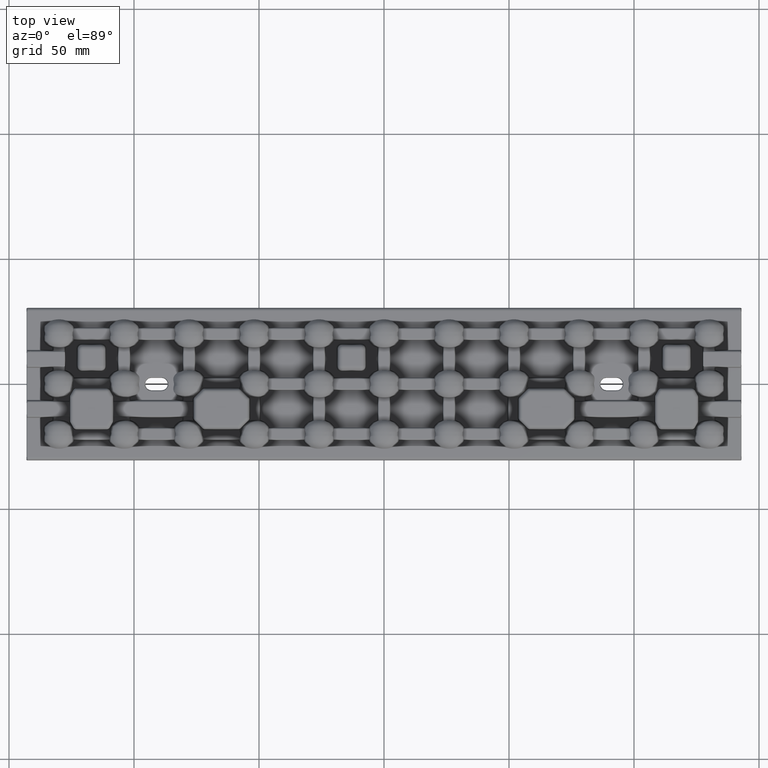
[diagram: clean part render]
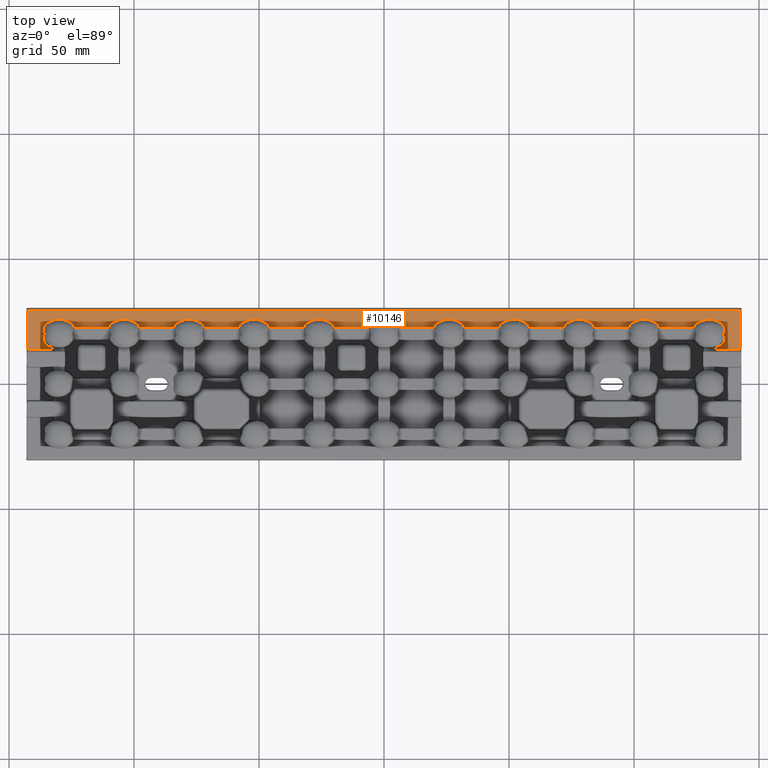
[diagram: same view with one face highlighted and labeled with its STEP entity id]
A machine part, top view. The second image highlights one B-rep face of the part: STEP entity #10146.
In plain terms, the highlighted planar face has unit normal (-0, 0, 1).
Its self-contained STEP definition (entity closure, byte-faithful):
#170 = B_SPLINE_CURVE_WITH_KNOTS ( 'NONE', 3,
 ( #16532, #3737, #4237, #1742, #78071, #77612, #77556, #77459, #77193, #77089, #76927, #76827, #76677, #76575, #76425, #76317, #61098, #7868, #21978, #76221, #76145, #76047, #75944, #75870, #75781, #75528, #75433, #75259, #75005, #74916, #74754, #74669, #74513, #74415, #74143, #73977 ),
 .UNSPECIFIED., .F., .F.,
 ( 4, 2, 2, 2, 2, 2, 2, 2, 2, 2, 2, 2, 2, 2, 2, 2, 2, 4 ),
 ( 0.002275996343188634400, 0.002728250509917983000, 0.003180504676647331300, 0.004085013010106036000, 0.004989521343564741100, 0.005894029677023446300, 0.006798538010482150500, 0.007703046343940856500, 0.008607554677399560000, 0.009512063010858266800, 0.01041657134431697000, 0.01132107967777567500, 0.01222558801123438200, 0.01313009634469308600, 0.01403460467815179100, 0.01493911301161049600, 0.01584362134506920100, 0.01674812967852790800 ),
 .UNSPECIFIED. ) ;
#185 = CARTESIAN_POINT ( 'NONE',  ( 24.48413725215601700, 25.76195794472083000, 2.000000000000000400 ) ) ;
#442 = CARTESIAN_POINT ( 'NONE',  ( 19.87528341715069400, 22.74142219370213200, 2.000000000000000000 ) ) ;
#738 = CARTESIAN_POINT ( 'NONE',  ( 132.7414221937016500, 14.53910680610566800, 2.000000000000000000 ) ) ;
#765 = CARTESIAN_POINT ( 'NONE',  ( -128.4867805242857600, 25.76397037756438000, 2.000000000000001300 ) ) ;
#933 = CARTESIAN_POINT ( 'NONE',  ( -47.39866481870599600, 24.58670644603919100, 2.000000000000000400 ) ) ;
#1049 = CARTESIAN_POINT ( 'NONE',  ( -135.6446668319441900, 23.64242492569152500, 2.000000000000190500 ) ) ;
#1181 = CARTESIAN_POINT ( 'NONE',  ( -53.21851775567384400, 25.80668256297307300, 1.999999999999998700 ) ) ;
#1395 = CARTESIAN_POINT ( 'NONE',  ( -72.48068254455195400, 23.79182352437914400, 2.000000000000050600 ) ) ;
#1421 = CARTESIAN_POINT ( 'NONE',  ( -58.02591998899578800, 23.03094700164173100, 2.000000000000001800 ) ) ;
#1567 = VECTOR ( 'NONE', #22036, 1000.000000000000000 ) ;
#1667 = CARTESIAN_POINT ( 'NONE',  ( -77.70456299393923400, 25.87784888434082100, 2.000000000000000400 ) ) ;
#1742 = CARTESIAN_POINT ( 'NONE',  ( 83.87143930477189700, 23.29325767552289500, 2.000000000000003600 ) ) ;
#1931 = CARTESIAN_POINT ( 'NONE',  ( -83.31008325977423100, 24.01117280352592000, 2.000000000000001300 ) ) ;
#2213 = CARTESIAN_POINT ( 'NONE',  ( -97.87528335633135200, 22.74142219370216000, 2.000000000000000000 ) ) ;
#2487 = CARTESIAN_POINT ( 'NONE',  ( 109.3105573360353600, 24.01081039900182600, 2.000000000000000400 ) ) ;
#2601 = CARTESIAN_POINT ( 'NONE',  ( 136.0389785945272400, 19.27654510555689500, 2.000000000000000000 ) ) ;
#2712 = DIRECTION ( 'NONE',  ( 1.000000000000000000, 0.0000000000000000000, 0.0000000000000000000 ) ) ;
#2747 = CARTESIAN_POINT ( 'NONE',  ( 103.6867157828229000, 25.87737867770244200, 2.000000000000000400 ) ) ;
#2935 = B_SPLINE_CURVE_WITH_KNOTS ( 'NONE', 3,
 ( #12330, #48321, #42562, #6541, #48570, #12589, #54614, #18668, #60630, #24695, #66757, #30674, #72882, #36741, #765, #42822, #6792, #48849, #12844, #54857, #18929, #60892, #24940, #67011, #30950, #73146, #36992, #1049, #43085, #7047, #49101, #13112, #55105, #19193, #61165, #25216, #67273, #31202 ),
 .UNSPECIFIED., .F., .F.,
 ( 4, 2, 2, 2, 2, 2, 2, 2, 2, 2, 2, 2, 2, 2, 2, 2, 2, 2, 4 ),
 ( 0.002275996343188637000, 0.002780745778955590000, 0.003285495214722543000, 0.004294994086256441100, 0.005304492957790273400, 0.006313991829324107400, 0.007323490700857940500, 0.008332989572391773600, 0.009342488443925607600, 0.01035198731545944000, 0.01237098505852710800, 0.01338048393006094300, 0.01438998280159477600, 0.01539948167312861100, 0.01640898054466244400, 0.01691372998042935800, 0.01741847941619627200, 0.01792322885196318300, 0.01842797828773009800 ),
 .UNSPECIFIED. ) ;
#2966 = CARTESIAN_POINT ( 'NONE',  ( 136.2708788479544600, 21.91032279607789200, 2.000000000000001800 ) ) ;
#3012 = CARTESIAN_POINT ( 'NONE',  ( 98.48078496340417600, 23.79222974334703300, 2.000000000000000400 ) ) ;
#3150 = CARTESIAN_POINT ( 'NONE',  ( 54.10189896508311600, 25.64368310781740900, 2.000000000000001300 ) ) ;
#3162 = B_SPLINE_CURVE_WITH_KNOTS ( 'NONE', 3,
 ( #50793, #56781, #75078, #38947, #2966, #45015, #8975, #51036, #15072, #57043, #21111, #63105, #27100, #69252, #33135, #75340, #39212, #3216, #45272, #9237, #51289, #15330, #57317, #21362, #63366, #27356, #69512, #33389, #75598, #39471, #3459, #45523, #9502, #51552, #15580, #57562 ),
 .UNSPECIFIED., .F., .F.,
 ( 4, 2, 2, 2, 2, 2, 2, 2, 2, 2, 2, 2, 2, 2, 2, 2, 2, 4 ),
 ( 0.0005961375090279718500, 0.001100887264324848500, 0.001605637019621725300, 0.002615136530215463200, 0.003119886285512309200, 0.003624636040809155600, 0.004634135551402855800, 0.005643635061996554700, 0.006653134572590255400, 0.008672133593777737300, 0.009681633104371518600, 0.01069113261496530000, 0.01271013163615294600, 0.01371963114674676700, 0.01472913065734058800, 0.01573863016793434300, 0.01624337992323121600, 0.01674812967852808500 ),
 .UNSPECIFIED. ) ;
#3208 = CARTESIAN_POINT ( 'NONE',  ( 5.788717846260484000, 23.42357442482896300, 2.000000000000051500 ) ) ;
#3216 = CARTESIAN_POINT ( 'NONE',  ( 132.1820311154945700, 25.64624235797493400, 1.999999999999998200 ) ) ;
#3395 = CARTESIAN_POINT ( 'NONE',  ( 48.18471247326403500, 25.03882649742064700, 2.000000000000001300 ) ) ;
#3451 = CARTESIAN_POINT ( 'NONE',  ( 0.6001387294918908400, 25.86574220998206600, 1.999999999999998700 ) ) ;
#3459 = CARTESIAN_POINT ( 'NONE',  ( 124.5732020887307800, 23.89857342531216800, 2.000000000000007100 ) ) ;
#3469 = CARTESIAN_POINT ( 'NONE',  ( 135.1988268364245900, 15.88518975005948700, 2.000000000000009300 ) ) ;
#3558 = CARTESIAN_POINT ( 'NONE',  ( -100.7373489821062400, 25.28184242365429000, 2.000000000000000400 ) ) ;
#3569 = CARTESIAN_POINT ( 'NONE',  ( -136.2074829077699300, 18.67874981392211700, 1.999999999999801000 ) ) ;
#3709 = CARTESIAN_POINT ( 'NONE',  ( -4.851493050310116600, 24.40868959467557900, 2.000000000000000000 ) ) ;
#3737 = CARTESIAN_POINT ( 'NONE',  ( 84.07550965349980700, 22.88562396744906000, 1.999999999999997800 ) ) ;
#3817 = CARTESIAN_POINT ( 'NONE',  ( -106.3963700064277900, 25.56854427240503100, 1.999999999999999100 ) ) ;
#3827 = CARTESIAN_POINT ( 'NONE',  ( -133.9340473854843500, 15.02213694033559000, 2.000000000000000400 ) ) ;
#4192 = EDGE_CURVE ( 'NONE', #19715, #58432, #62599, .T. ) ;
#4237 = CARTESIAN_POINT ( 'NONE',  ( 84.01452209546738500, 23.02461435016126900, 2.000000000000003600 ) ) ;
#4531 = EDGE_CURVE ( 'NONE', #57799, #24482, #170, .T. ) ;
#4870 = CARTESIAN_POINT ( 'NONE',  ( -136.1422940776980400, 18.92599855326297100, 2.000000000000179400 ) ) ;
#5527 = CARTESIAN_POINT ( 'NONE',  ( -21.14984179067012300, 24.40979810255904800, 2.000000000000000400 ) ) ;
#5704 = CARTESIAN_POINT ( 'NONE',  ( 32.12471664366864100, 22.74142219370213900, 2.000000000000000000 ) ) ;
#5778 = CARTESIAN_POINT ( 'NONE',  ( -26.61769566497988000, 25.86461950329275400, 2.000000000000000000 ) ) ;
#5953 = CARTESIAN_POINT ( 'NONE',  ( 29.26265101789377000, 25.28184242365429300, 1.999999999999999100 ) ) ;
#6028 = CARTESIAN_POINT ( 'NONE',  ( -31.88072922454316000, 23.29753420550872500, 2.000000000000000400 ) ) ;
#6208 = CARTESIAN_POINT ( 'NONE',  ( 23.60362999357219100, 25.56854427240504200, 2.000000000000000900 ) ) ;
#6541 = CARTESIAN_POINT ( 'NONE',  ( -124.1649326987466100, 23.35422719709755800, 2.000000000000000900 ) ) ;
#6582 = ORIENTED_EDGE ( 'NONE', *, *, #16888, .F. ) ;
#6792 = CARTESIAN_POINT ( 'NONE',  ( -129.4980903145275600, 25.87147453427902000, 2.000000000000000900 ) ) ;
#6941 = CARTESIAN_POINT ( 'NONE',  ( -48.18262050165140000, 25.03780424287719000, 2.000000000000001300 ) ) ;
#7047 = CARTESIAN_POINT ( 'NONE',  ( -136.0682446042354700, 22.90529293210442000, 2.000000000000000400 ) ) ;
#7174 = CARTESIAN_POINT ( 'NONE',  ( -71.87528335633133700, 22.74142219370214900, 2.000000000000000000 ) ) ;
#7200 = VECTOR ( 'NONE', #19615, 1000.000000000000000 ) ;
#7202 = VERTEX_POINT ( 'NONE', #24356 ) ;
#7203 = CARTESIAN_POINT ( 'NONE',  ( -54.10478286921601700, 25.64285794544107900, 2.000000000000001300 ) ) ;
#7327 = VECTOR ( 'NONE', #69386, 1000.000000000000000 ) ;
#7413 = ORIENTED_EDGE ( 'NONE', *, *, #57274, .T. ) ;
#7437 = CARTESIAN_POINT ( 'NONE',  ( -73.14984179067012300, 24.40979810255902600, 2.000000000000000000 ) ) ;
#7698 = CARTESIAN_POINT ( 'NONE',  ( -78.61769566497979200, 25.86461950329276500, 2.000000000000001300 ) ) ;
#7844 = VERTEX_POINT ( 'NONE', #22972 ) ;
#7868 = CARTESIAN_POINT ( 'NONE',  ( 78.60013872949183200, 25.86574220998208100, 2.000000000000000900 ) ) ;
#7964 = CARTESIAN_POINT ( 'NONE',  ( -83.88072922454314600, 23.29753420550874000, 1.999999999999998700 ) ) ;
#8238 = VERTEX_POINT ( 'NONE', #40950 ) ;
#8242 = CARTESIAN_POINT ( 'NONE',  ( 110.1247166436686300, 22.74142219370216700, 2.000000000000000000 ) ) ;
#8521 = CARTESIAN_POINT ( 'NONE',  ( 108.6013351812940000, 24.58670644603920900, 2.000000000000000000 ) ) ;
#8773 = CARTESIAN_POINT ( 'NONE',  ( 102.7814822443262000, 25.80668256297308400, 2.000000000000000900 ) ) ;
#8910 = CARTESIAN_POINT ( 'NONE',  ( 57.87143930477193300, 23.29325767552287400, 2.000000000000004000 ) ) ;
#8966 = CARTESIAN_POINT ( 'NONE',  ( 6.014522095467413900, 23.02461435016123300, 2.000000000000004000 ) ) ;
#8975 = CARTESIAN_POINT ( 'NONE',  ( 136.1423770346253300, 22.75214154298077300, 1.999999999999962300 ) ) ;
#9015 = CARTESIAN_POINT ( 'NONE',  ( 97.97408001100424700, 23.03094700164176000, 2.000000000000001300 ) ) ;
#9072 = CARTESIAN_POINT ( 'NONE',  ( -136.1784386418722800, 18.80336111614544200, 1.999999999999999600 ) ) ;
#9096 = CARTESIAN_POINT ( 'NONE',  ( 132.7414221937016500, 0.0000000000000000000, 2.000000000000000000 ) ) ;
#9152 = DIRECTION ( 'NONE',  ( 1.000000000000000000, -3.844641663027053000E-016, 0.0000000000000000000 ) ) ;
#9162 = CARTESIAN_POINT ( 'NONE',  ( 53.20471487232482800, 25.80855502716314800, 2.000000000000001300 ) ) ;
#9223 = CARTESIAN_POINT ( 'NONE',  ( 5.310557336035417500, 24.01081039900179400, 2.000000000000001800 ) ) ;
#9237 = CARTESIAN_POINT ( 'NONE',  ( 130.4999643765035600, 25.87241571720616300, 2.000000000000000400 ) ) ;
#9337 = CARTESIAN_POINT ( 'NONE',  ( -97.92449034650015000, 22.88562396744903500, 1.999999999999996200 ) ) ;
#9368 = ORIENTED_EDGE ( 'NONE', *, *, #59045, .F. ) ;
#9434 = CARTESIAN_POINT ( 'NONE',  ( 47.39877739052919700, 24.58683439160101600, 2.000000000000000000 ) ) ;
#9490 = CARTESIAN_POINT ( 'NONE',  ( -0.3132842171769832400, 25.87737867770244200, 2.000000000000000000 ) ) ;
#9502 = CARTESIAN_POINT ( 'NONE',  ( 124.1642173043351400, 23.35299357963073800, 2.000000000000000400 ) ) ;
#9510 = CARTESIAN_POINT ( 'NONE',  ( 135.7193098480831800, 16.46446374168947500, 1.999999999999998700 ) ) ;
#9573 = VECTOR ( 'NONE', #9152, 1000.000000000000000 ) ;
#9587 = CARTESIAN_POINT ( 'NONE',  ( -101.6035630723461300, 25.56857466250403000, 1.999999999999998700 ) ) ;
#9597 = CARTESIAN_POINT ( 'NONE',  ( -136.2617692709982000, 18.29459632493069800, 1.999999999999990900 ) ) ;
#9732 = CARTESIAN_POINT ( 'NONE',  ( -5.519215036595817000, 23.79222974334701100, 2.000000000000000000 ) ) ;
#9838 = CARTESIAN_POINT ( 'NONE',  ( -107.2604607991790400, 25.28270322200913300, 2.000000000000000400 ) ) ;
#9848 = CARTESIAN_POINT ( 'NONE',  ( -133.2304776266955700, 14.70739173823322700, 2.000000000000000400 ) ) ;
#9893 = CARTESIAN_POINT ( 'NONE',  ( 6.124716643668670600, 22.74142219370212800, 2.000000000000000000 ) ) ;
#10146 = ADVANCED_FACE ( 'NONE', ( #21596 ), #62325, .T. ) ;
#10410 = ORIENTED_EDGE ( 'NONE', *, *, #11236, .F. ) ;
#10610 = CARTESIAN_POINT ( 'NONE',  ( -8.743261924239526700E-015, 22.74142219370212500, 2.000000000000000000 ) ) ;
#11010 = VECTOR ( 'NONE', #45987, 1000.000000000000000 ) ;
#11236 = EDGE_CURVE ( 'NONE', #74017, #21066, #24667, .T. ) ;
#11573 = CARTESIAN_POINT ( 'NONE',  ( -21.91415199814609200, 24.90006964188271600, 1.999999999999999100 ) ) ;
#11822 = CARTESIAN_POINT ( 'NONE',  ( -27.51586274784400400, 25.76195794472082300, 2.000000000000001300 ) ) ;
#12014 = CARTESIAN_POINT ( 'NONE',  ( 28.39643692765389100, 25.56857466250402000, 1.999999999999998700 ) ) ;
#12090 = CARTESIAN_POINT ( 'NONE',  ( -32.12471658284931000, 22.74142219370213500, 2.000000000000000000 ) ) ;
#12277 = CARTESIAN_POINT ( 'NONE',  ( 22.73953920082095000, 25.28270322200914300, 2.000000000000000400 ) ) ;
#12330 = CARTESIAN_POINT ( 'NONE',  ( -123.8752833563313500, 22.74142219370217100, 2.000000000000000000 ) ) ;
#12524 = EDGE_CURVE ( 'NONE', #26277, #66616, #3162, .T. ) ;
#12589 = CARTESIAN_POINT ( 'NONE',  ( -124.5727934172250700, 23.89787782810448400, 2.000000000000123000 ) ) ;
#12746 = EDGE_CURVE ( 'NONE', #21382, #53256, #45966, .T. ) ;
#12837 = LINE ( 'NONE', #74866, #58877 ) ;
#12844 = CARTESIAN_POINT ( 'NONE',  ( -130.5179456155990200, 25.87146490793557200, 2.000000000000000900 ) ) ;
#13006 = CARTESIAN_POINT ( 'NONE',  ( -49.02391717355021700, 25.38799079489401900, 2.000000000000000400 ) ) ;
#13112 = CARTESIAN_POINT ( 'NONE',  ( -136.2188377549439300, 22.41595420809252600, 1.999999999999992200 ) ) ;
#13236 = CARTESIAN_POINT ( 'NONE',  ( -71.92449034650013600, 22.88562396744902800, 1.999999999999996200 ) ) ;
#13259 = CARTESIAN_POINT ( 'NONE',  ( -54.97349825908265300, 25.38884701042956500, 2.000000000000000000 ) ) ;
#13488 = CARTESIAN_POINT ( 'NONE',  ( -73.91415199814606800, 24.90006964188270200, 1.999999999999998700 ) ) ;
#13749 = CARTESIAN_POINT ( 'NONE',  ( -79.51586274784394000, 25.76195794472082300, 2.000000000000000400 ) ) ;
#14027 = CARTESIAN_POINT ( 'NONE',  ( -84.12471658284931700, 22.74142219370215300, 2.000000000000000000 ) ) ;
#14075 = ORIENTED_EDGE ( 'NONE', *, *, #12746, .T. ) ;
#14587 = CARTESIAN_POINT ( 'NONE',  ( 107.8173794983486100, 25.03780424287719700, 2.000000000000001300 ) ) ;
#14844 = CARTESIAN_POINT ( 'NONE',  ( 101.8952171307839300, 25.64285794544107900, 1.999999999999999100 ) ) ;
#14989 = CARTESIAN_POINT ( 'NONE',  ( 142.4984859507544300, 13.77131854326629700, 2.000000000000000000 ) ) ;
#14995 = CARTESIAN_POINT ( 'NONE',  ( 57.51931745544804600, 23.79182352437914000, 2.000000000000050200 ) ) ;
#15064 = ORIENTED_EDGE ( 'NONE', *, *, #37060, .T. ) ;
#15072 = CARTESIAN_POINT ( 'NONE',  ( 135.8325920328521800, 23.35755012512630600, 2.000000000000017800 ) ) ;
#15079 = ORIENTED_EDGE ( 'NONE', *, *, #48727, .T. ) ;
#15263 = CARTESIAN_POINT ( 'NONE',  ( 52.29543700606078000, 25.87784888434084300, 2.000000000000000000 ) ) ;
#15318 = CARTESIAN_POINT ( 'NONE',  ( -71.87528335633133700, 22.74142219370214900, 2.000000000000000000 ) ) ;
#15322 = CARTESIAN_POINT ( 'NONE',  ( 4.601335181294024000, 24.58670644603917300, 1.999999999999999100 ) ) ;
#15330 = CARTESIAN_POINT ( 'NONE',  ( 129.4801714825816000, 25.87062644867763000, 2.000000000000001300 ) ) ;
#15422 = CARTESIAN_POINT ( 'NONE',  ( -97.98547790453260100, 23.02461435016126100, 2.000000000000002700 ) ) ;
#15516 = CARTESIAN_POINT ( 'NONE',  ( 46.68991674022574800, 24.01117280352590600, 2.000000000000000400 ) ) ;
#15570 = CARTESIAN_POINT ( 'NONE',  ( -1.218517755673786300, 25.80668256297306900, 2.000000000000000000 ) ) ;
#15580 = CARTESIAN_POINT ( 'NONE',  ( 123.9304156417274200, 22.90298795330229000, 2.000000000000000000 ) ) ;
#15591 = CARTESIAN_POINT ( 'NONE',  ( 136.0962294656004300, 17.14447868008417300, 1.999999999999918500 ) ) ;
#15673 = CARTESIAN_POINT ( 'NONE',  ( -102.4949628830236300, 25.76389970656172300, 2.000000000000001300 ) ) ;
#15685 = CARTESIAN_POINT ( 'NONE',  ( -136.2389101807882200, 17.64995279821489400, 2.000000000000000900 ) ) ;
#15824 = CARTESIAN_POINT ( 'NONE',  ( -6.025919988995787500, 23.03094700164171700, 2.000000000000000400 ) ) ;
#15943 = CARTESIAN_POINT ( 'NONE',  ( -108.0841774659759000, 24.90102541659839000, 2.000000000000000000 ) ) ;
#15954 = CARTESIAN_POINT ( 'NONE',  ( -132.7414221937016500, 14.53910680023595400, 2.000000000000000000 ) ) ;
#16532 = CARTESIAN_POINT ( 'NONE',  ( 84.12471664366862000, 22.74142219370215700, 2.000000000000000000 ) ) ;
#16888 = EDGE_CURVE ( 'NONE', #27560, #52897, #35302, .T. ) ;
#17004 = CARTESIAN_POINT ( 'NONE',  ( -135.9868454775444800, 20.36550122177483900, 2.000000000000000000 ) ) ;
#17040 = ORIENTED_EDGE ( 'NONE', *, *, #42802, .T. ) ;
#17285 = CARTESIAN_POINT ( 'NONE',  ( 132.7414221937016500, 13.77131854326629700, 2.000000000000000000 ) ) ;
#17340 = CARTESIAN_POINT ( 'NONE',  ( -132.7414221937016500, 14.53910680023595400, 2.000000000000000000 ) ) ;
#17587 = ORIENTED_EDGE ( 'NONE', *, *, #4531, .F. ) ;
#17653 = CARTESIAN_POINT ( 'NONE',  ( -22.73734898210623700, 25.28184242365429300, 1.999999999999999600 ) ) ;
#17831 = CARTESIAN_POINT ( 'NONE',  ( 32.01452209546740600, 23.02461435016125400, 2.000000000000004000 ) ) ;
#17908 = CARTESIAN_POINT ( 'NONE',  ( -28.39637000642782300, 25.56854427240503500, 2.000000000000000000 ) ) ;
#17954 = B_SPLINE_CURVE_WITH_KNOTS ( 'NONE', 3,
 ( #4870, #40616, #52932, #17004, #58952, #23044 ),
 .UNSPECIFIED., .F., .F.,
 ( 4, 2, 4 ),
 ( 0.0000000000000000000, 0.001085195747919706800, 0.002170391495839413600 ),
 .UNSPECIFIED. ) ;
#18096 = CARTESIAN_POINT ( 'NONE',  ( 27.50503711697639300, 25.76389970656171300, 2.000000000000001300 ) ) ;
#18344 = CARTESIAN_POINT ( 'NONE',  ( 21.91582253402410900, 24.90102541659839400, 1.999999999999999100 ) ) ;
#18496 = EDGE_CURVE ( 'NONE', #37980, #24482, #23636, .T. ) ;
#18668 = CARTESIAN_POINT ( 'NONE',  ( -125.3501642389305300, 24.55764947140921000, 2.000000000000003600 ) ) ;
#18929 = CARTESIAN_POINT ( 'NONE',  ( -132.1819549806901900, 25.64610572729383600, 1.999999999999999100 ) ) ;
#19087 = CARTESIAN_POINT ( 'NONE',  ( -49.89810103491694100, 25.64368310781742400, 2.000000000000000000 ) ) ;
#19193 = CARTESIAN_POINT ( 'NONE',  ( -136.2708335915808100, 21.91307896239617000, 1.999999999999999100 ) ) ;
#19341 = CARTESIAN_POINT ( 'NONE',  ( -55.81528752673601400, 25.03882649742061900, 2.000000000000001300 ) ) ;
#19474 = LINE ( 'NONE', #37423, #7200 ) ;
#19573 = CARTESIAN_POINT ( 'NONE',  ( -74.73734898210621200, 25.28184242365427900, 1.999999999999999100 ) ) ;
#19615 = DIRECTION ( 'NONE',  ( 1.000000000000000000, -3.844641663027053000E-016, 0.0000000000000000000 ) ) ;
#19715 = VERTEX_POINT ( 'NONE', #17285 ) ;
#19839 = CARTESIAN_POINT ( 'NONE',  ( -80.39637000642777300, 25.56854427240504500, 1.999999999999999600 ) ) ;
#20392 = ORIENTED_EDGE ( 'NONE', *, *, #74619, .T. ) ;
#20649 = CARTESIAN_POINT ( 'NONE',  ( 106.9760828264497400, 25.38799079489403000, 2.000000000000000000 ) ) ;
#20798 = CARTESIAN_POINT ( 'NONE',  ( 58.07550965349982200, 22.88562396744903500, 1.999999999999996700 ) ) ;
#20905 = CARTESIAN_POINT ( 'NONE',  ( 101.0265017409173700, 25.38884701042957600, 2.000000000000000900 ) ) ;
#21046 = CARTESIAN_POINT ( 'NONE',  ( 56.85015820932989800, 24.40979810255903700, 2.000000000000001800 ) ) ;
#21066 = VERTEX_POINT ( 'NONE', #51131 ) ;
#21111 = CARTESIAN_POINT ( 'NONE',  ( 135.5292434236605500, 23.76610951145809400, 2.000000000000001300 ) ) ;
#21293 = CARTESIAN_POINT ( 'NONE',  ( 51.38230433502021600, 25.86461950329277200, 2.000000000000000000 ) ) ;
#21351 = CARTESIAN_POINT ( 'NONE',  ( 3.817379498348632400, 25.03780424287719300, 2.000000000000000000 ) ) ;
#21362 = CARTESIAN_POINT ( 'NONE',  ( 128.1427242334093000, 25.71911605654116800, 1.999999999999999100 ) ) ;
#21372 = CARTESIAN_POINT ( 'NONE',  ( 132.7414221937016500, 14.53910680610566800, 2.000000000000000000 ) ) ;
#21382 = VERTEX_POINT ( 'NONE', #50770 ) ;
#21459 = CARTESIAN_POINT ( 'NONE',  ( -98.21128215373951800, 23.42357442482898800, 2.000000000000048000 ) ) ;
#21559 = CARTESIAN_POINT ( 'NONE',  ( 46.11927077545686200, 23.29753420550872900, 2.000000000000000400 ) ) ;
#21596 = FACE_OUTER_BOUND ( 'NONE', #53941, .T. ) ;
#21618 = CARTESIAN_POINT ( 'NONE',  ( -2.104782869215978900, 25.64285794544108300, 2.000000000000000400 ) ) ;
#21634 = CARTESIAN_POINT ( 'NONE',  ( 136.2278325243345900, 17.64327522075632300, 1.999999999999931600 ) ) ;
#21724 = CARTESIAN_POINT ( 'NONE',  ( -103.3998612705081400, 25.86574220998206600, 2.000000000000000400 ) ) ;
#21739 = CARTESIAN_POINT ( 'NONE',  ( -135.9917490843460000, 16.91203831608472900, 1.999999999999998700 ) ) ;
#21880 = B_SPLINE_CURVE_WITH_KNOTS ( 'NONE', 3,
 ( #21372, #57325, #69524, #33401, #75609, #39479, #3469, #45536, #9510, #51564, #15591, #57575, #21634, #63638, #27623, #69787, #33665, #75861 ),
 .UNSPECIFIED., .F., .F.,
 ( 4, 2, 2, 2, 2, 2, 2, 2, 4 ),
 ( 0.01225064876170037900, 0.01378397203531959000, 0.01455063367212916000, 0.01531729530893872500, 0.01608395694574829200, 0.01685061858255785700, 0.01723394940096263000, 0.01761728021936740200, 0.01838394185617695700 ),
 .UNSPECIFIED. ) ;
#21978 = CARTESIAN_POINT ( 'NONE',  ( 78.29543700606069500, 25.87784888434084300, 2.000000000000000400 ) ) ;
#21983 = CARTESIAN_POINT ( 'NONE',  ( -108.8514930503101400, 24.40868959467557500, 2.000000000000000000 ) ) ;
#22036 = DIRECTION ( 'NONE',  ( 1.000000000000000000, 0.0000000000000000000, 0.0000000000000000000 ) ) ;
#22265 = B_SPLINE_CURVE_WITH_KNOTS ( 'NONE', 3,
 ( #48735, #24335, #60785, #24836, #66910, #30837, #73033, #36889, #933, #42972, #6941, #49004, #13006, #55009, #19087, #61051, #25096, #67162, #31105, #73305, #37146, #1181, #43256, #7203, #49254, #13259, #55269, #19341, #61325, #25359, #67426, #31360, #73588, #37411, #1421, #43504 ),
 .UNSPECIFIED., .F., .F.,
 ( 4, 2, 2, 2, 2, 2, 2, 2, 2, 2, 2, 2, 2, 2, 2, 2, 2, 4 ),
 ( 0.002275996343188607100, 0.002728250509917964000, 0.003180504676647321300, 0.004085013010106035100, 0.004989521343564749800, 0.005894029677023463600, 0.006798538010482177400, 0.007703046343940891200, 0.008607554677399606800, 0.009512063010858320600, 0.01041657134431703400, 0.01132107967777574800, 0.01222558801123446200, 0.01313009634469317600, 0.01403460467815189000, 0.01493911301161060500, 0.01584362134506931900, 0.01674812967852803300 ),
 .UNSPECIFIED. ) ;
#22476 = EDGE_CURVE ( 'NONE', #7202, #66616, #68685, .T. ) ;
#22566 = VECTOR ( 'NONE', #32724, 1000.000000000000000 ) ;
#22972 = CARTESIAN_POINT ( 'NONE',  ( 136.1422941395027800, 18.92599852830035100, 1.999999999993474100 ) ) ;
#23044 = CARTESIAN_POINT ( 'NONE',  ( -136.1422940776979300, 21.07400144673698600, 2.000000000000433900 ) ) ;
#23509 = B_SPLINE_CURVE_WITH_KNOTS ( 'NONE', 3,
 ( #7174, #13236, #31334, #73557, #37382, #1395, #43475, #7437, #49477, #13488, #55505, #19573, #61544, #25581, #67673, #31580, #73817, #37660, #1667, #43722, #7698, #49755, #13749, #55755, #19839, #61808, #25842, #67942, #31860, #74069, #37926, #1931, #43992, #7964, #50020, #14027 ),
 .UNSPECIFIED., .F., .F.,
 ( 4, 2, 2, 2, 2, 2, 2, 2, 2, 2, 2, 2, 2, 2, 2, 2, 2, 4 ),
 ( 0.002275996343188605300, 0.002728250509917951400, 0.003180504676647297900, 0.004085013010105990900, 0.004989521343564683000, 0.005894029677023375100, 0.006798538010482068100, 0.007703046343940761100, 0.008607554677399452400, 0.009512063010858145400, 0.01041657134431683800, 0.01132107967777553100, 0.01222558801123422300, 0.01313009634469291600, 0.01403460467815160900, 0.01493911301161030000, 0.01584362134506899300, 0.01674812967852768600 ),
 .UNSPECIFIED. ) ;
#23636 = LINE ( 'NONE', #29025, #55524 ) ;
#23712 = CARTESIAN_POINT ( 'NONE',  ( -23.60356307234611600, 25.56857466250402000, 2.000000000000000400 ) ) ;
#23878 = CARTESIAN_POINT ( 'NONE',  ( 31.78871784626047900, 23.42357442482898800, 2.000000000000051100 ) ) ;
#23951 = CARTESIAN_POINT ( 'NONE',  ( -29.26046079917906100, 25.28270322200912500, 1.999999999999999600 ) ) ;
#24128 = CARTESIAN_POINT ( 'NONE',  ( 26.60013872949185300, 25.86574220998204900, 2.000000000000000400 ) ) ;
#24143 = CARTESIAN_POINT ( 'NONE',  ( 84.12471664366862000, 22.74142219370215700, 2.000000000000000000 ) ) ;
#24335 = CARTESIAN_POINT ( 'NONE',  ( -45.92449034650016400, 22.88562396744902800, 1.999999999999997300 ) ) ;
#24356 = CARTESIAN_POINT ( 'NONE',  ( 110.1247166436686300, 22.74142219370216700, 2.000000000000000000 ) ) ;
#24370 = VERTEX_POINT ( 'NONE', #26911 ) ;
#24387 = CARTESIAN_POINT ( 'NONE',  ( 21.14850694968988500, 24.40868959467557200, 2.000000000000000400 ) ) ;
#24482 = VERTEX_POINT ( 'NONE', #51869 ) ;
#24667 = B_SPLINE_CURVE_WITH_KNOTS ( 'NONE', 3,
 ( #28902, #59359, #65464, #71615, #35432, #77690, #41529, #5527, #47576, #11573, #53602, #17653, #59606, #23712, #65737, #29660, #71863, #35698, #77944, #41779, #5778, #47840, #11822, #53835, #17908, #59870, #23951, #65991, #29929, #72120, #35955, #78217, #42044, #6028, #48095, #12090 ),
 .UNSPECIFIED., .F., .F.,
 ( 4, 2, 2, 2, 2, 2, 2, 2, 2, 2, 2, 2, 2, 2, 2, 2, 2, 4 ),
 ( 0.002275996343188594500, 0.002728250509917947000, 0.003180504676647299600, 0.004085013010106012600, 0.004989521343564725500, 0.005894029677023437600, 0.006798538010482150500, 0.007703046343940864400, 0.008607554677399577300, 0.009512063010858289400, 0.01041657134431700100, 0.01132107967777571500, 0.01222558801123442900, 0.01313009634469314100, 0.01403460467815185300, 0.01493911301161056700, 0.01584362134506928100, 0.01674812967852799500 ),
 .UNSPECIFIED. ) ;
#24695 = CARTESIAN_POINT ( 'NONE',  ( -126.2252789222859900, 25.06082286688307200, 1.999999999999999100 ) ) ;
#24836 = CARTESIAN_POINT ( 'NONE',  ( -46.12856069522805300, 23.29325767552287000, 2.000000000000004400 ) ) ;
#24940 = CARTESIAN_POINT ( 'NONE',  ( -133.4620785208391900, 25.20198668728869500, 2.000000000000000000 ) ) ;
#25096 = CARTESIAN_POINT ( 'NONE',  ( -50.79528512767520000, 25.80855502716315900, 1.999999999999998700 ) ) ;
#25165 = LINE ( 'NONE', #29112, #71317 ) ;
#25185 = ORIENTED_EDGE ( 'NONE', *, *, #12524, .F. ) ;
#25216 = CARTESIAN_POINT ( 'NONE',  ( -136.2256610445397500, 21.40283836035322900, 1.999999999999998200 ) ) ;
#25359 = CARTESIAN_POINT ( 'NONE',  ( -56.60122260947083100, 24.58683439160101300, 2.000000000000000900 ) ) ;
#25581 = CARTESIAN_POINT ( 'NONE',  ( -75.60356307234607700, 25.56857466250400900, 2.000000000000000000 ) ) ;
#25618 = B_SPLINE_CURVE_WITH_KNOTS ( 'NONE', 3,
 ( #5704, #59536, #17831, #59794, #23878, #65924, #29848, #72051, #35884, #78138, #41960, #5953, #48025, #12014, #54011, #18096, #60058, #24128, #66176, #30127, #72307, #36139, #185, #42238, #6208, #48267, #12277, #54276, #18344, #60321, #24387, #66424, #30373, #72584, #36402, #442 ),
 .UNSPECIFIED., .F., .F.,
 ( 4, 2, 2, 2, 2, 2, 2, 2, 2, 2, 2, 2, 2, 2, 2, 2, 2, 4 ),
 ( 0.002275996343188607900, 0.002728250509917958800, 0.003180504676647310000, 0.004085013010106011700, 0.004989521343564722000, 0.005894029677023432400, 0.006798538010482142700, 0.007703046343940851300, 0.008607554677399561700, 0.009512063010858272000, 0.01041657134431698400, 0.01132107967777569300, 0.01222558801123440300, 0.01313009634469311200, 0.01403460467815182200, 0.01493911301161053400, 0.01584362134506924300, 0.01674812967852795300 ),
 .UNSPECIFIED. ) ;
#25745 = CARTESIAN_POINT ( 'NONE',  ( 142.4984859507544300, 29.17765049216839300, 2.000000000000000000 ) ) ;
#25842 = CARTESIAN_POINT ( 'NONE',  ( -81.26046079917901500, 25.28270322200914000, 1.999999999999999100 ) ) ;
#26007 = ORIENTED_EDGE ( 'NONE', *, *, #56478, .F. ) ;
#26050 = B_SPLINE_CURVE_WITH_KNOTS ( 'NONE', 3,
 ( #33125, #38938, #8966, #39204, #3208, #45261, #9223, #51277, #15322, #57306, #21351, #63358, #27347, #69502, #33376, #75589, #39461, #3451, #45512, #9490, #51544, #15570, #57552, #21618, #63619, #27600, #69766, #33643, #75841, #39718, #3709, #45770, #9732, #51797, #15824, #57797 ),
 .UNSPECIFIED., .F., .F.,
 ( 4, 2, 2, 2, 2, 2, 2, 2, 2, 2, 2, 2, 2, 2, 2, 2, 2, 4 ),
 ( 0.002275996343188591900, 0.002728250509917949200, 0.003180504676647306100, 0.004085013010106013400, 0.004989521343564721200, 0.005894029677023428900, 0.006798538010482136700, 0.007703046343940844400, 0.008607554677399553000, 0.009512063010858259900, 0.01041657134431697000, 0.01132107967777567700, 0.01222558801123438400, 0.01313009634469309100, 0.01403460467815179800, 0.01493911301161050500, 0.01584362134506921500, 0.01674812967852792200 ),
 .UNSPECIFIED. ) ;
#26277 = VERTEX_POINT ( 'NONE', #75492 ) ;
#26388 = CARTESIAN_POINT ( 'NONE',  ( 142.4984859507544300, 0.0000000000000000000, 2.000000000000000000 ) ) ;
#26501 = CARTESIAN_POINT ( 'NONE',  ( 136.0389785876765200, 20.72345487119043400, 1.999999999992750200 ) ) ;
#26607 = CARTESIAN_POINT ( 'NONE',  ( 0.0000000000000000000, 0.0000000000000000000, 2.000000000000000000 ) ) ;
#26643 = CARTESIAN_POINT ( 'NONE',  ( 106.1018989650830700, 25.64368310781742000, 2.000000000000001300 ) ) ;
#26704 = CARTESIAN_POINT ( 'NONE',  ( -8.743261924239526700E-015, 22.74142219370212500, 2.000000000000000000 ) ) ;
#26775 = CARTESIAN_POINT ( 'NONE',  ( 8.743261924239526700E-015, 22.74142219370212100, 2.000000000000000000 ) ) ;
#26888 = CARTESIAN_POINT ( 'NONE',  ( 100.1847124732639900, 25.03882649742062900, 1.999999999999999600 ) ) ;
#26911 = CARTESIAN_POINT ( 'NONE',  ( -123.8752833563313500, 22.74142219370217100, 2.000000000000000000 ) ) ;
#27014 = EDGE_CURVE ( 'NONE', #8238, #40192, #25618, .T. ) ;
#27037 = CARTESIAN_POINT ( 'NONE',  ( 56.08584800185391800, 24.90006964188269100, 2.000000000000000900 ) ) ;
#27042 = CARTESIAN_POINT ( 'NONE',  ( -19.87528335633135200, 22.74142219370212800, 2.000000000000000000 ) ) ;
#27100 = CARTESIAN_POINT ( 'NONE',  ( 134.9198074983194700, 24.35689271116526900, 1.999999999999999600 ) ) ;
#27291 = CARTESIAN_POINT ( 'NONE',  ( 50.48413725215604600, 25.76195794472083400, 2.000000000000001300 ) ) ;
#27323 = VECTOR ( 'NONE', #63502, 1000.000000000000000 ) ;
#27347 = CARTESIAN_POINT ( 'NONE',  ( 2.976082826449808500, 25.38799079489400500, 2.000000000000000400 ) ) ;
#27356 = CARTESIAN_POINT ( 'NONE',  ( 126.5357682004879800, 25.20055981314029100, 2.000000000000000400 ) ) ;
#27450 = CARTESIAN_POINT ( 'NONE',  ( -98.68944266396461300, 24.01081039900182300, 2.000000000000001800 ) ) ;
#27544 = CARTESIAN_POINT ( 'NONE',  ( 45.87528341715067600, 22.74142219370214200, 2.000000000000000000 ) ) ;
#27560 = VERTEX_POINT ( 'NONE', #54466 ) ;
#27600 = CARTESIAN_POINT ( 'NONE',  ( -2.973498259082631500, 25.38884701042957200, 2.000000000000000900 ) ) ;
#27623 = CARTESIAN_POINT ( 'NONE',  ( 136.2676170527117000, 18.03128758575088900, 1.999999999999987600 ) ) ;
#27710 = CARTESIAN_POINT ( 'NONE',  ( -104.3132842171769900, 25.87737867770244500, 2.000000000000000000 ) ) ;
#27722 = CARTESIAN_POINT ( 'NONE',  ( -135.5611003043811100, 16.26430371964528700, 2.000000000000000400 ) ) ;
#27963 = CARTESIAN_POINT ( 'NONE',  ( -109.5192150365958100, 23.79222974334702900, 2.000000000000001300 ) ) ;
#28222 = DIRECTION ( 'NONE',  ( 1.000000000000000000, -3.844641663027053000E-016, 0.0000000000000000000 ) ) ;
#28236 = LINE ( 'NONE', #52129, #44270 ) ;
#28275 = VERTEX_POINT ( 'NONE', #36839 ) ;
#28783 = EDGE_CURVE ( 'NONE', #26277, #7844, #37616, .T. ) ;
#28902 = CARTESIAN_POINT ( 'NONE',  ( -19.87528335633135200, 22.74142219370212800, 2.000000000000000000 ) ) ;
#29025 = CARTESIAN_POINT ( 'NONE',  ( -8.743261924239526700E-015, 22.74142219370212500, 2.000000000000000000 ) ) ;
#29112 = CARTESIAN_POINT ( 'NONE',  ( -142.8847614606772000, 29.17765049216839300, 2.000000000000000000 ) ) ;
#29299 = EDGE_CURVE ( 'NONE', #29871, #60992, #26050, .T. ) ;
#29660 = CARTESIAN_POINT ( 'NONE',  ( -24.49496288302363900, 25.76389970656172300, 2.000000000000001800 ) ) ;
#29848 = CARTESIAN_POINT ( 'NONE',  ( 31.31055733603538400, 24.01081039900180500, 2.000000000000000000 ) ) ;
#29871 = VERTEX_POINT ( 'NONE', #9893 ) ;
#29929 = CARTESIAN_POINT ( 'NONE',  ( -30.08417746597590900, 24.90102541659839400, 1.999999999999999600 ) ) ;
#30127 = CARTESIAN_POINT ( 'NONE',  ( 25.68671578282299000, 25.87737867770244500, 2.000000000000000900 ) ) ;
#30373 = CARTESIAN_POINT ( 'NONE',  ( 20.48078496340418300, 23.79222974334701100, 2.000000000000000000 ) ) ;
#30450 = DIRECTION ( 'NONE',  ( 0.0000000000000000000, -1.000000000000000000, 0.0000000000000000000 ) ) ;
#30661 = EDGE_CURVE ( 'NONE', #77006, #21382, #25165, .T. ) ;
#30674 = CARTESIAN_POINT ( 'NONE',  ( -127.1698161663112400, 25.43942936801392600, 2.000000000000000400 ) ) ;
#30730 = EDGE_CURVE ( 'NONE', #71107, #52897, #53327, .T. ) ;
#30837 = CARTESIAN_POINT ( 'NONE',  ( -46.48068254455195400, 23.79182352437914000, 2.000000000000048000 ) ) ;
#30950 = CARTESIAN_POINT ( 'NONE',  ( -134.3635786380984000, 24.74282425877769900, 2.000000000000077300 ) ) ;
#31105 = CARTESIAN_POINT ( 'NONE',  ( -51.70456299393927700, 25.87784888434084300, 2.000000000000000400 ) ) ;
#31125 = ORIENTED_EDGE ( 'NONE', *, *, #27014, .F. ) ;
#31202 = CARTESIAN_POINT ( 'NONE',  ( -136.1422940776979300, 21.07400144673698600, 2.000000000000433900 ) ) ;
#31334 = CARTESIAN_POINT ( 'NONE',  ( -71.98547790453258700, 23.02461435016126100, 2.000000000000004400 ) ) ;
#31360 = CARTESIAN_POINT ( 'NONE',  ( -57.31008325977424500, 24.01117280352590600, 2.000000000000001300 ) ) ;
#31580 = CARTESIAN_POINT ( 'NONE',  ( -76.49496288302357500, 25.76389970656170900, 2.000000000000001300 ) ) ;
#31860 = CARTESIAN_POINT ( 'NONE',  ( -82.08417746597588400, 24.90102541659839700, 2.000000000000000400 ) ) ;
#32050 = ORIENTED_EDGE ( 'NONE', *, *, #43290, .T. ) ;
#32407 = CARTESIAN_POINT ( 'NONE',  ( 109.8714393047719000, 23.29325767552291300, 2.000000000000006700 ) ) ;
#32661 = CARTESIAN_POINT ( 'NONE',  ( 105.2047148723247600, 25.80855502716315900, 2.000000000000000000 ) ) ;
#32701 = CARTESIAN_POINT ( 'NONE',  ( 58.12471664366865600, 22.74142219370214600, 2.000000000000000000 ) ) ;
#32724 = DIRECTION ( 'NONE',  ( 1.000000000000000000, 3.844641663027053000E-016, 0.0000000000000000000 ) ) ;
#32931 = CARTESIAN_POINT ( 'NONE',  ( 99.39877739052917600, 24.58683439160101300, 2.000000000000000000 ) ) ;
#33071 = CARTESIAN_POINT ( 'NONE',  ( 55.26265101789380200, 25.28184242365427500, 2.000000000000000000 ) ) ;
#33125 = CARTESIAN_POINT ( 'NONE',  ( 6.124716643668670600, 22.74142219370212800, 2.000000000000000000 ) ) ;
#33135 = CARTESIAN_POINT ( 'NONE',  ( 134.0721452426256200, 24.90856579489923600, 1.999999999999999600 ) ) ;
#33202 = EDGE_CURVE ( 'NONE', #43852, #21066, #19474, .T. ) ;
#33256 = CARTESIAN_POINT ( 'NONE',  ( -84.12471658284931700, 22.74142219370215300, 2.000000000000000000 ) ) ;
#33324 = CARTESIAN_POINT ( 'NONE',  ( 49.60362999357222000, 25.56854427240504200, 1.999999999999999100 ) ) ;
#33376 = CARTESIAN_POINT ( 'NONE',  ( 2.101898965083099500, 25.64368310781743100, 2.000000000000001800 ) ) ;
#33389 = CARTESIAN_POINT ( 'NONE',  ( 125.6347281434111400, 24.74037055286131100, 1.999999999999998700 ) ) ;
#33401 = CARTESIAN_POINT ( 'NONE',  ( 134.3693825953014000, 15.26637053028120800, 1.999999999999998700 ) ) ;
#33473 = CARTESIAN_POINT ( 'NONE',  ( -99.39866481870601000, 24.58670644603919100, 1.999999999999999600 ) ) ;
#33490 = CARTESIAN_POINT ( 'NONE',  ( -136.1422940776980400, 18.92599855326297100, 2.000000000000179400 ) ) ;
#33643 = CARTESIAN_POINT ( 'NONE',  ( -3.815287526735975400, 25.03882649742064400, 2.000000000000001800 ) ) ;
#33665 = CARTESIAN_POINT ( 'NONE',  ( 136.2159641498783500, 18.67603836992196900, 2.000000000000000900 ) ) ;
#33752 = CARTESIAN_POINT ( 'NONE',  ( -105.2185177556738300, 25.80668256297305900, 1.999999999999999600 ) ) ;
#33761 = CARTESIAN_POINT ( 'NONE',  ( -135.0103733627247800, 15.72177819001388200, 2.000000000000048400 ) ) ;
#34004 = CARTESIAN_POINT ( 'NONE',  ( -110.0259199889958100, 23.03094700164174600, 2.000000000000000400 ) ) ;
#35049 = DIRECTION ( 'NONE',  ( 1.000000000000000000, 3.844641663027053000E-016, 0.0000000000000000000 ) ) ;
#35302 = B_SPLINE_CURVE_WITH_KNOTS ( 'NONE', 3,
 ( #33490, #9072, #3569, #45624, #9597, #51658, #15685, #57656, #21739, #63745, #27722, #69872, #33761, #75961, #39831, #3827, #45897, #9848, #51904, #15954 ),
 .UNSPECIFIED., .F., .F.,
 ( 4, 2, 2, 2, 2, 2, 2, 2, 2, 4 ),
 ( 0.0005957444063413115600, 0.0009792573374338335700, 0.001362770268526355800, 0.002129796130711398100, 0.002896821992896439500, 0.003663847855081481800, 0.004430873717266524100, 0.005197899579451566300, 0.005964925441636608600, 0.006731951303821650000 ),
 .UNSPECIFIED. ) ;
#35432 = CARTESIAN_POINT ( 'NONE',  ( -20.21128215373952800, 23.42357442482897800, 2.000000000000050200 ) ) ;
#35612 = B_SPLINE_CURVE_WITH_KNOTS ( 'NONE', 3,
 ( #8242, #56320, #68516, #32407, #74629, #38483, #2487, #44541, #8521, #50561, #14587, #56575, #20649, #62622, #26643, #68785, #32661, #74872, #38745, #2747, #44789, #8773, #50834, #14844, #56825, #20905, #62888, #26888, #69039, #32931, #75128, #38995, #3012, #45052, #9015, #51078 ),
 .UNSPECIFIED., .F., .F.,
 ( 4, 2, 2, 2, 2, 2, 2, 2, 2, 2, 2, 2, 2, 2, 2, 2, 2, 4 ),
 ( 0.002275996343188632600, 0.002728250509917989100, 0.003180504676647345600, 0.004085013010106058500, 0.004989521343564771500, 0.005894029677023484400, 0.006798538010482197400, 0.007703046343940910300, 0.008607554677399622400, 0.009512063010858336200, 0.01041657134431705000, 0.01132107967777576200, 0.01222558801123447400, 0.01313009634469318800, 0.01403460467815190200, 0.01493911301161061400, 0.01584362134506932600, 0.01674812967852804000 ),
 .UNSPECIFIED. ) ;
#35698 = CARTESIAN_POINT ( 'NONE',  ( -25.39986127050817200, 25.86574220998207000, 2.000000000000000000 ) ) ;
#35884 = CARTESIAN_POINT ( 'NONE',  ( 30.60133518129401200, 24.58670644603918700, 1.999999999999999600 ) ) ;
#35955 = CARTESIAN_POINT ( 'NONE',  ( -30.85149305031013300, 24.40868959467557900, 1.999999999999998700 ) ) ;
#36139 = CARTESIAN_POINT ( 'NONE',  ( 24.78148224432619200, 25.80668256297308400, 1.999999999999999600 ) ) ;
#36402 = CARTESIAN_POINT ( 'NONE',  ( 19.97408001100422600, 23.03094700164174200, 2.000000000000000000 ) ) ;
#36741 = CARTESIAN_POINT ( 'NONE',  ( -128.1521017394623000, 25.70130968190581200, 2.000000000000000000 ) ) ;
#36839 = CARTESIAN_POINT ( 'NONE',  ( -136.1422940776979300, 21.07400144673698600, 2.000000000000433900 ) ) ;
#36889 = CARTESIAN_POINT ( 'NONE',  ( -47.14984179067013100, 24.40979810255904400, 2.000000000000002200 ) ) ;
#36992 = CARTESIAN_POINT ( 'NONE',  ( -135.1834138264738400, 24.13670479910277300, 2.000000000000189600 ) ) ;
#37060 = EDGE_CURVE ( 'NONE', #57247, #75540, #59378, .T. ) ;
#37146 = CARTESIAN_POINT ( 'NONE',  ( -52.61769566497987000, 25.86461950329275400, 1.999999999999999600 ) ) ;
#37382 = CARTESIAN_POINT ( 'NONE',  ( -72.21128215373953200, 23.42357442482899200, 2.000000000000050600 ) ) ;
#37411 = CARTESIAN_POINT ( 'NONE',  ( -57.88072922454312400, 23.29753420550872500, 1.999999999999999100 ) ) ;
#37423 = CARTESIAN_POINT ( 'NONE',  ( 8.743261924239526700E-015, 22.74142219370212100, 2.000000000000000000 ) ) ;
#37492 = ORIENTED_EDGE ( 'NONE', *, *, #4192, .T. ) ;
#37616 = B_SPLINE_CURVE_WITH_KNOTS ( 'NONE', 3,
 ( #68637, #26501, #74735, #38596, #2601, #44647 ),
 .UNSPECIFIED., .F., .F.,
 ( 4, 2, 4 ),
 ( 0.0000000000000000000, 0.001085195773855443000, 0.002170391547710886000 ),
 .UNSPECIFIED. ) ;
#37660 = CARTESIAN_POINT ( 'NONE',  ( -77.39986127050809700, 25.86574220998208400, 2.000000000000001300 ) ) ;
#37926 = CARTESIAN_POINT ( 'NONE',  ( -82.85149305031012500, 24.40868959467558200, 2.000000000000001300 ) ) ;
#37959 = B_SPLINE_CURVE_WITH_KNOTS ( 'NONE', 3,
 ( #39310, #9337, #15422, #57415, #21459, #63457, #27450, #69615, #33473, #75690, #39573, #3558, #45613, #9587, #51646, #15673, #57647, #21724, #63734, #27710, #69864, #33752, #75948, #39822, #3817, #45881, #9838, #51896, #15943, #57901, #21983, #64007, #27963, #70118, #34004, #76227 ),
 .UNSPECIFIED., .F., .F.,
 ( 4, 2, 2, 2, 2, 2, 2, 2, 2, 2, 2, 2, 2, 2, 2, 2, 2, 4 ),
 ( 0.002275996343188609700, 0.002728250509917961800, 0.003180504676647313500, 0.004085013010106017800, 0.004989521343564722000, 0.005894029677023425500, 0.006798538010482128900, 0.007703046343940834000, 0.008607554677399537400, 0.009512063010858240800, 0.01041657134431694600, 0.01132107967777564900, 0.01222558801123435300, 0.01313009634469305800, 0.01403460467815176100, 0.01493911301161046500, 0.01584362134506917000, 0.01674812967852787300 ),
 .UNSPECIFIED. ) ;
#37980 = VERTEX_POINT ( 'NONE', #32701 ) ;
#38306 = CARTESIAN_POINT ( 'NONE',  ( -58.12471658284930200, 22.74142219370214200, 2.000000000000000000 ) ) ;
#38483 = CARTESIAN_POINT ( 'NONE',  ( 109.5193174554480000, 23.79182352437915400, 2.000000000000049300 ) ) ;
#38596 = CARTESIAN_POINT ( 'NONE',  ( 135.9868455307762100, 19.63449876925070100, 2.000000000000000000 ) ) ;
#38711 = DIRECTION ( 'NONE',  ( -0.0000000000000000000, 0.0000000000000000000, 1.000000000000000000 ) ) ;
#38745 = CARTESIAN_POINT ( 'NONE',  ( 104.2954370060606700, 25.87784888434084300, 2.000000000000000000 ) ) ;
#38887 = CARTESIAN_POINT ( 'NONE',  ( 58.12471664366865600, 22.74142219370214600, 2.000000000000000000 ) ) ;
#38938 = CARTESIAN_POINT ( 'NONE',  ( 6.075509653499829600, 22.88562396744901400, 1.999999999999996200 ) ) ;
#38947 = CARTESIAN_POINT ( 'NONE',  ( 136.2660057853547400, 21.73856761446017700, 1.999999999999972700 ) ) ;
#38995 = CARTESIAN_POINT ( 'NONE',  ( 98.68991674022579700, 24.01117280352591300, 1.999999999999999600 ) ) ;
#39140 = CARTESIAN_POINT ( 'NONE',  ( 54.39643692765390900, 25.56857466250401600, 2.000000000000000400 ) ) ;
#39204 = CARTESIAN_POINT ( 'NONE',  ( 5.871439304771945100, 23.29325767552286000, 2.000000000000003100 ) ) ;
#39212 = CARTESIAN_POINT ( 'NONE',  ( 133.1474998546252900, 25.32718279993571300, 1.999999999999998200 ) ) ;
#39281 = DIRECTION ( 'NONE',  ( 1.000000000000000000, -0.0000000000000000000, 0.0000000000000000000 ) ) ;
#39310 = CARTESIAN_POINT ( 'NONE',  ( -97.87528335633135200, 22.74142219370216000, 2.000000000000000000 ) ) ;
#39405 = CARTESIAN_POINT ( 'NONE',  ( 48.73953920082100000, 25.28270322200915400, 2.000000000000001300 ) ) ;
#39461 = CARTESIAN_POINT ( 'NONE',  ( 1.204714872324819800, 25.80855502716315500, 1.999999999999999100 ) ) ;
#39471 = CARTESIAN_POINT ( 'NONE',  ( 124.8158551762983600, 24.13367435333975000, 1.999999999999998700 ) ) ;
#39479 = CARTESIAN_POINT ( 'NONE',  ( 135.0037674660888200, 15.71630448506376400, 1.999999999999464900 ) ) ;
#39573 = CARTESIAN_POINT ( 'NONE',  ( -100.1826205016513900, 25.03780424287718300, 2.000000000000000900 ) ) ;
#39718 = CARTESIAN_POINT ( 'NONE',  ( -4.601222609470816800, 24.58683439160101300, 2.000000000000000000 ) ) ;
#39822 = CARTESIAN_POINT ( 'NONE',  ( -106.1047828692159800, 25.64285794544107900, 1.999999999999999600 ) ) ;
#39831 = CARTESIAN_POINT ( 'NONE',  ( -134.3804325738109100, 15.27316774386952700, 2.000000000000001800 ) ) ;
#39888 = CARTESIAN_POINT ( 'NONE',  ( 0.0000000000000000000, 13.77131854326629700, 2.000000000000000000 ) ) ;
#39917 = CARTESIAN_POINT ( 'NONE',  ( -8.743261924239526700E-015, 22.74142219370212500, 2.000000000000000000 ) ) ;
#40192 = VERTEX_POINT ( 'NONE', #41610 ) ;
#40347 = VERTEX_POINT ( 'NONE', #15318 ) ;
#40436 = ORIENTED_EDGE ( 'NONE', *, *, #63174, .F. ) ;
#40616 = CARTESIAN_POINT ( 'NONE',  ( -136.0389785313406600, 19.27654514606715700, 2.000000000000179000 ) ) ;
#40950 = CARTESIAN_POINT ( 'NONE',  ( 32.12471664366864100, 22.74142219370213900, 2.000000000000000000 ) ) ;
#41117 = LINE ( 'NONE', #39917, #11010 ) ;
#41479 = ORIENTED_EDGE ( 'NONE', *, *, #29299, .F. ) ;
#41529 = CARTESIAN_POINT ( 'NONE',  ( -20.68944266396460900, 24.01081039900180500, 2.000000000000000000 ) ) ;
#41610 = CARTESIAN_POINT ( 'NONE',  ( 19.87528341715069400, 22.74142219370213200, 2.000000000000000000 ) ) ;
#41779 = CARTESIAN_POINT ( 'NONE',  ( -26.31328421717704600, 25.87737867770245600, 2.000000000000000000 ) ) ;
#41960 = CARTESIAN_POINT ( 'NONE',  ( 29.81737949834861800, 25.03780424287719300, 1.999999999999999100 ) ) ;
#42044 = CARTESIAN_POINT ( 'NONE',  ( -31.51921503659582800, 23.79222974334700800, 2.000000000000000400 ) ) ;
#42238 = CARTESIAN_POINT ( 'NONE',  ( 23.89521713078399800, 25.64285794544107900, 2.000000000000000900 ) ) ;
#42562 = CARTESIAN_POINT ( 'NONE',  ( -123.9997837736777500, 23.05681557220519200, 2.000000000000001300 ) ) ;
#42802 = EDGE_CURVE ( 'NONE', #24370, #65356, #43358, .T. ) ;
#42822 = CARTESIAN_POINT ( 'NONE',  ( -129.1588840295991600, 25.84943613948348700, 2.000000000000001300 ) ) ;
#42972 = CARTESIAN_POINT ( 'NONE',  ( -47.91415199814608900, 24.90006964188270900, 2.000000000000000000 ) ) ;
#43085 = CARTESIAN_POINT ( 'NONE',  ( -135.8472069634694000, 23.36177148380998100, 2.000000000000000400 ) ) ;
#43157 = EDGE_CURVE ( 'NONE', #43852, #46281, #22265, .T. ) ;
#43256 = CARTESIAN_POINT ( 'NONE',  ( -53.51586274784400400, 25.76195794472082700, 2.000000000000001300 ) ) ;
#43290 = EDGE_CURVE ( 'NONE', #74017, #60992, #28236, .T. ) ;
#43358 = LINE ( 'NONE', #45406, #27323 ) ;
#43475 = CARTESIAN_POINT ( 'NONE',  ( -72.68944266396461300, 24.01081039900179400, 2.000000000000000000 ) ) ;
#43504 = CARTESIAN_POINT ( 'NONE',  ( -58.12471658284930200, 22.74142219370214200, 2.000000000000000000 ) ) ;
#43722 = CARTESIAN_POINT ( 'NONE',  ( -78.31328421717698500, 25.87737867770245600, 2.000000000000000400 ) ) ;
#43852 = VERTEX_POINT ( 'NONE', #64224 ) ;
#43992 = CARTESIAN_POINT ( 'NONE',  ( -83.51921503659583800, 23.79222974334701800, 1.999999999999999100 ) ) ;
#44249 = CARTESIAN_POINT ( 'NONE',  ( -132.7414221937016500, 13.77131854326629700, 2.000000000000000000 ) ) ;
#44270 = VECTOR ( 'NONE', #28222, 1000.000000000000000 ) ;
#44541 = CARTESIAN_POINT ( 'NONE',  ( 108.8501582093298200, 24.40979810255906600, 2.000000000000000400 ) ) ;
#44647 = CARTESIAN_POINT ( 'NONE',  ( 136.1422941395027800, 18.92599852830035100, 1.999999999993474100 ) ) ;
#44782 = DIRECTION ( 'NONE',  ( 1.000000000000000000, -3.844641663027053000E-016, 0.0000000000000000000 ) ) ;
#44789 = CARTESIAN_POINT ( 'NONE',  ( 103.3823043350201700, 25.86461950329276100, 2.000000000000001300 ) ) ;
#44835 = VECTOR ( 'NONE', #50549, 1000.000000000000000 ) ;
#44940 = CARTESIAN_POINT ( 'NONE',  ( 58.01452209546739900, 23.02461435016124400, 2.000000000000004400 ) ) ;
#45015 = CARTESIAN_POINT ( 'NONE',  ( 136.2355183708553200, 22.41646832329988500, 2.000000000000002200 ) ) ;
#45052 = CARTESIAN_POINT ( 'NONE',  ( 98.11927077545684000, 23.29753420550874000, 2.000000000000000400 ) ) ;
#45204 = CARTESIAN_POINT ( 'NONE',  ( 53.50503711697641800, 25.76389970656170500, 2.000000000000001800 ) ) ;
#45261 = CARTESIAN_POINT ( 'NONE',  ( 5.519317455448061500, 23.79182352437912600, 2.000000000000052400 ) ) ;
#45272 = CARTESIAN_POINT ( 'NONE',  ( 131.5130212073022400, 25.78425993390711900, 2.000000000000001300 ) ) ;
#45406 = CARTESIAN_POINT ( 'NONE',  ( 8.743261924239526700E-015, 22.74142219370212100, 2.000000000000000000 ) ) ;
#45462 = CARTESIAN_POINT ( 'NONE',  ( 47.91582253402413700, 24.90102541659841500, 2.000000000000000000 ) ) ;
#45512 = CARTESIAN_POINT ( 'NONE',  ( 0.2954370060607808800, 25.87784888434084600, 2.000000000000000400 ) ) ;
#45523 = CARTESIAN_POINT ( 'NONE',  ( 124.2595882292661300, 23.49550296467398900, 2.000000000000006200 ) ) ;
#45536 = CARTESIAN_POINT ( 'NONE',  ( 135.5571382490336100, 16.25939339621360700, 2.000000000000008900 ) ) ;
#45613 = CARTESIAN_POINT ( 'NONE',  ( -101.0239171735502600, 25.38799079489401600, 1.999999999999999100 ) ) ;
#45624 = CARTESIAN_POINT ( 'NONE',  ( -136.2491534736721500, 18.42496305614902500, 1.999999999999801000 ) ) ;
#45770 = CARTESIAN_POINT ( 'NONE',  ( -5.310083259774240000, 24.01117280352589100, 2.000000000000000000 ) ) ;
#45881 = CARTESIAN_POINT ( 'NONE',  ( -106.9734982590826300, 25.38884701042957600, 1.999999999999999600 ) ) ;
#45897 = CARTESIAN_POINT ( 'NONE',  ( -133.7036661683736700, 14.90969121436089200, 2.000000000000000000 ) ) ;
#45966 = LINE ( 'NONE', #54079, #76162 ) ;
#45987 = DIRECTION ( 'NONE',  ( 1.000000000000000000, 3.844641663027053000E-016, 0.0000000000000000000 ) ) ;
#46281 = VERTEX_POINT ( 'NONE', #38306 ) ;
#46637 = DIRECTION ( 'NONE',  ( 1.000000000000000000, 3.844641663027053000E-016, 0.0000000000000000000 ) ) ;
#46674 = EDGE_CURVE ( 'NONE', #7202, #61042, #35612, .T. ) ;
#47444 = CARTESIAN_POINT ( 'NONE',  ( 45.87528341715067600, 22.74142219370214200, 2.000000000000000000 ) ) ;
#47576 = CARTESIAN_POINT ( 'NONE',  ( -21.39866481870599900, 24.58670644603918700, 1.999999999999999100 ) ) ;
#47639 = LINE ( 'NONE', #57967, #1567 ) ;
#47840 = CARTESIAN_POINT ( 'NONE',  ( -27.21851775567383300, 25.80668256297306900, 2.000000000000000000 ) ) ;
#48025 = CARTESIAN_POINT ( 'NONE',  ( 28.97608282644979400, 25.38799079489400900, 1.999999999999999600 ) ) ;
#48095 = CARTESIAN_POINT ( 'NONE',  ( -32.02591998899579600, 23.03094700164173500, 2.000000000000000400 ) ) ;
#48267 = CARTESIAN_POINT ( 'NONE',  ( 23.02650174091733600, 25.38884701042956800, 2.000000000000000000 ) ) ;
#48321 = CARTESIAN_POINT ( 'NONE',  ( -123.9302020333733300, 22.90236214581296900, 1.999999999999997300 ) ) ;
#48570 = CARTESIAN_POINT ( 'NONE',  ( -124.2608153143489200, 23.49716492353522700, 2.000000000000123500 ) ) ;
#48727 = EDGE_CURVE ( 'NONE', #53256, #71107, #47639, .T. ) ;
#48735 = CARTESIAN_POINT ( 'NONE',  ( -45.87528335633134400, 22.74142219370213900, 2.000000000000000000 ) ) ;
#48849 = CARTESIAN_POINT ( 'NONE',  ( -130.1774081296667900, 25.88141769561061900, 2.000000000000000900 ) ) ;
#49004 = CARTESIAN_POINT ( 'NONE',  ( -48.73734898210624100, 25.28184242365429300, 2.000000000000001300 ) ) ;
#49101 = CARTESIAN_POINT ( 'NONE',  ( -136.1292586559661700, 22.74502588051530000, 1.999999999999991800 ) ) ;
#49254 = CARTESIAN_POINT ( 'NONE',  ( -54.39637000642782300, 25.56854427240503500, 2.000000000000000000 ) ) ;
#49477 = CARTESIAN_POINT ( 'NONE',  ( -73.39866481870598100, 24.58670644603917700, 1.999999999999998700 ) ) ;
#49755 = CARTESIAN_POINT ( 'NONE',  ( -79.21851775567380100, 25.80668256297308700, 2.000000000000000400 ) ) ;
#50020 = CARTESIAN_POINT ( 'NONE',  ( -84.02591998899578100, 23.03094700164176000, 1.999999999999998700 ) ) ;
#50465 = LINE ( 'NONE', #26388, #44835 ) ;
#50549 = DIRECTION ( 'NONE',  ( -0.0000000000000000000, 1.000000000000000000, -0.0000000000000000000 ) ) ;
#50561 = CARTESIAN_POINT ( 'NONE',  ( 108.0858480018539000, 24.90006964188273400, 2.000000000000000000 ) ) ;
#50770 = CARTESIAN_POINT ( 'NONE',  ( -142.4984859507544300, 29.17765049216839300, 2.000000000000000000 ) ) ;
#50793 = CARTESIAN_POINT ( 'NONE',  ( 136.1422941395030100, 21.07400147169966000, 1.999999999992750700 ) ) ;
#50834 = CARTESIAN_POINT ( 'NONE',  ( 102.4841372521559700, 25.76195794472082000, 1.999999999999999100 ) ) ;
#50973 = CARTESIAN_POINT ( 'NONE',  ( 57.78871784626047500, 23.42357442482898500, 2.000000000000051100 ) ) ;
#51036 = CARTESIAN_POINT ( 'NONE',  ( 135.9207969297110000, 23.20982438317933500, 1.999999999999961800 ) ) ;
#51078 = CARTESIAN_POINT ( 'NONE',  ( 97.87528341715069800, 22.74142219370216400, 2.000000000000000000 ) ) ;
#51131 = CARTESIAN_POINT ( 'NONE',  ( -32.12471658284931000, 22.74142219370213500, 2.000000000000000000 ) ) ;
#51222 = CARTESIAN_POINT ( 'NONE',  ( 52.60013872949191000, 25.86574220998207400, 2.000000000000000900 ) ) ;
#51277 = CARTESIAN_POINT ( 'NONE',  ( 4.850158209329912900, 24.40979810255903000, 2.000000000000001800 ) ) ;
#51289 = CARTESIAN_POINT ( 'NONE',  ( 130.1596113598256200, 25.88171304168375300, 2.000000000000000900 ) ) ;
#51483 = CARTESIAN_POINT ( 'NONE',  ( 47.14850694968989600, 24.40868959467558200, 2.000000000000000000 ) ) ;
#51544 = CARTESIAN_POINT ( 'NONE',  ( -0.6176956649798225300, 25.86461950329275400, 2.000000000000000000 ) ) ;
#51552 = CARTESIAN_POINT ( 'NONE',  ( 124.0000322378129300, 23.05720795068675600, 2.000000000000000000 ) ) ;
#51564 = CARTESIAN_POINT ( 'NONE',  ( 135.9875288773236300, 16.90402220197022500, 1.999999999999998700 ) ) ;
#51646 = CARTESIAN_POINT ( 'NONE',  ( -101.8981010349169500, 25.64368310781741700, 2.000000000000001300 ) ) ;
#51658 = CARTESIAN_POINT ( 'NONE',  ( -136.2707034396326000, 17.90558947995624100, 1.999999999999991300 ) ) ;
#51744 = ORIENTED_EDGE ( 'NONE', *, *, #43157, .F. ) ;
#51797 = CARTESIAN_POINT ( 'NONE',  ( -5.880729224543132200, 23.29753420550871800, 2.000000000000000400 ) ) ;
#51869 = CARTESIAN_POINT ( 'NONE',  ( 71.87528341715066900, 22.74142219370215300, 2.000000000000000000 ) ) ;
#51896 = CARTESIAN_POINT ( 'NONE',  ( -107.8152875267359700, 25.03882649742062900, 2.000000000000000000 ) ) ;
#51904 = CARTESIAN_POINT ( 'NONE',  ( -132.9870772960633800, 14.61746080869049200, 1.999999999999998700 ) ) ;
#51970 = EDGE_CURVE ( 'NONE', #29871, #40192, #60137, .T. ) ;
#52129 = CARTESIAN_POINT ( 'NONE',  ( 8.743261924239526700E-015, 22.74142219370212100, 2.000000000000000000 ) ) ;
#52373 = ORIENTED_EDGE ( 'NONE', *, *, #46674, .F. ) ;
#52649 = ORIENTED_EDGE ( 'NONE', *, *, #30730, .T. ) ;
#52687 = EDGE_CURVE ( 'NONE', #24370, #28275, #2935, .T. ) ;
#52897 = VERTEX_POINT ( 'NONE', #17340 ) ;
#52932 = CARTESIAN_POINT ( 'NONE',  ( -135.9868449055932700, 19.63450468718988900, 2.000000000000000000 ) ) ;
#53256 = VERTEX_POINT ( 'NONE', #71194 ) ;
#53327 = LINE ( 'NONE', #73659, #55194 ) ;
#53331 = CARTESIAN_POINT ( 'NONE',  ( 97.87528341715069800, 22.74142219370216400, 2.000000000000000000 ) ) ;
#53602 = CARTESIAN_POINT ( 'NONE',  ( -22.18262050165139200, 25.03780424287719700, 1.999999999999999600 ) ) ;
#53624 = ORIENTED_EDGE ( 'NONE', *, *, #66672, .T. ) ;
#53721 = DIRECTION ( 'NONE',  ( 1.000000000000000000, 3.844641663027053000E-016, 0.0000000000000000000 ) ) ;
#53835 = CARTESIAN_POINT ( 'NONE',  ( -28.10478286921602000, 25.64285794544107200, 2.000000000000001800 ) ) ;
#53941 = EDGE_LOOP ( 'NONE', ( #62826, #63838, #37492, #7413, #54446, #14075, #15079, #52649, #6582, #53624, #73550, #17040, #9368, #15064, #40436, #76335, #51744, #57384, #10410, #32050, #41479, #77397, #31125, #20392, #26007, #63629, #17587, #60791, #52373, #59891, #25185, #77059 ) ) ;
#54011 = CARTESIAN_POINT ( 'NONE',  ( 28.10189896508307300, 25.64368310781742000, 2.000000000000000900 ) ) ;
#54079 = CARTESIAN_POINT ( 'NONE',  ( -142.4984859507544300, 0.0000000000000000000, 2.000000000000000000 ) ) ;
#54276 = CARTESIAN_POINT ( 'NONE',  ( 22.18471247326402100, 25.03882649742064000, 2.000000000000000900 ) ) ;
#54446 = ORIENTED_EDGE ( 'NONE', *, *, #30661, .T. ) ;
#54466 = CARTESIAN_POINT ( 'NONE',  ( -136.1422940776980400, 18.92599855326297100, 2.000000000000179400 ) ) ;
#54614 = CARTESIAN_POINT ( 'NONE',  ( -124.8165026251769400, 24.13431372534996600, 2.000000000000004000 ) ) ;
#54857 = CARTESIAN_POINT ( 'NONE',  ( -131.5252392006907200, 25.78192378973378500, 2.000000000000000000 ) ) ;
#55009 = CARTESIAN_POINT ( 'NONE',  ( -49.60356307234609100, 25.56857466250402000, 2.000000000000000400 ) ) ;
#55105 = CARTESIAN_POINT ( 'NONE',  ( -136.2470301624738300, 22.24955103308035100, 2.000000000000000000 ) ) ;
#55194 = VECTOR ( 'NONE', #61648, 1000.000000000000000 ) ;
#55269 = CARTESIAN_POINT ( 'NONE',  ( -55.26046079917906400, 25.28270322200913300, 2.000000000000001300 ) ) ;
#55505 = CARTESIAN_POINT ( 'NONE',  ( -74.18262050165138500, 25.03780424287718600, 1.999999999999998700 ) ) ;
#55524 = VECTOR ( 'NONE', #35049, 1000.000000000000000 ) ;
#55526 = EDGE_CURVE ( 'NONE', #67505, #19715, #57158, .T. ) ;
#55755 = CARTESIAN_POINT ( 'NONE',  ( -80.10478286921598100, 25.64285794544107900, 2.000000000000000000 ) ) ;
#56320 = CARTESIAN_POINT ( 'NONE',  ( 110.0755096534997800, 22.88562396744905300, 1.999999999999997300 ) ) ;
#56478 = EDGE_CURVE ( 'NONE', #37980, #67829, #71359, .T. ) ;
#56544 = EDGE_CURVE ( 'NONE', #57799, #61042, #41117, .T. ) ;
#56575 = CARTESIAN_POINT ( 'NONE',  ( 107.2626510178937700, 25.28184242365430000, 2.000000000000001300 ) ) ;
#56781 = CARTESIAN_POINT ( 'NONE',  ( 136.1898608585488800, 21.23539393745197000, 2.000000000000000400 ) ) ;
#56825 = CARTESIAN_POINT ( 'NONE',  ( 101.6036299935722000, 25.56854427240504900, 2.000000000000000900 ) ) ;
#56924 = VECTOR ( 'NONE', #39281, 1000.000000000000000 ) ;
#56933 = LINE ( 'NONE', #71740, #71174 ) ;
#56971 = CARTESIAN_POINT ( 'NONE',  ( 57.31055733603543000, 24.01081039900180500, 2.000000000000002200 ) ) ;
#57043 = CARTESIAN_POINT ( 'NONE',  ( 135.6366535071507500, 23.63564552775094500, 2.000000000000018200 ) ) ;
#57158 = LINE ( 'NONE', #9096, #7327 ) ;
#57238 = CARTESIAN_POINT ( 'NONE',  ( 51.68671578282300100, 25.87737867770244200, 2.000000000000000000 ) ) ;
#57247 = VERTEX_POINT ( 'NONE', #2213 ) ;
#57274 = EDGE_CURVE ( 'NONE', #58432, #77006, #50465, .T. ) ;
#57287 = EDGE_CURVE ( 'NONE', #40347, #46281, #12837, .T. ) ;
#57306 = CARTESIAN_POINT ( 'NONE',  ( 4.085848001853938700, 24.90006964188270900, 1.999999999999999600 ) ) ;
#57317 = CARTESIAN_POINT ( 'NONE',  ( 129.1423872277582100, 25.84787336955917100, 1.999999999999998700 ) ) ;
#57325 = CARTESIAN_POINT ( 'NONE',  ( 133.2282148343141200, 14.69437390599490600, 1.999999999999992200 ) ) ;
#57384 = ORIENTED_EDGE ( 'NONE', *, *, #33202, .T. ) ;
#57415 = CARTESIAN_POINT ( 'NONE',  ( -98.12856069522806000, 23.29325767552288100, 2.000000000000002200 ) ) ;
#57503 = CARTESIAN_POINT ( 'NONE',  ( 46.48078496340418300, 23.79222974334702200, 2.000000000000000000 ) ) ;
#57552 = CARTESIAN_POINT ( 'NONE',  ( -1.515862747843959200, 25.76195794472084100, 2.000000000000001300 ) ) ;
#57562 = CARTESIAN_POINT ( 'NONE',  ( 123.8752834171507100, 22.74142219370217400, 2.000000000000000000 ) ) ;
#57575 = CARTESIAN_POINT ( 'NONE',  ( 136.2018499561951900, 17.51704820488946600, 1.999999999999918500 ) ) ;
#57647 = CARTESIAN_POINT ( 'NONE',  ( -102.7952851276752300, 25.80855502716315500, 2.000000000000000000 ) ) ;
#57656 = CARTESIAN_POINT ( 'NONE',  ( -136.0976086484951100, 17.14721611102858700, 2.000000000000000900 ) ) ;
#57797 = CARTESIAN_POINT ( 'NONE',  ( -6.124716582849311300, 22.74142219370212500, 2.000000000000000000 ) ) ;
#57799 = VERTEX_POINT ( 'NONE', #24143 ) ;
#57901 = CARTESIAN_POINT ( 'NONE',  ( -108.6012226094708100, 24.58683439160101300, 2.000000000000000000 ) ) ;
#57967 = CARTESIAN_POINT ( 'NONE',  ( 0.0000000000000000000, 13.77131854326629700, 2.000000000000000000 ) ) ;
#58257 = VECTOR ( 'NONE', #46637, 1000.000000000000000 ) ;
#58432 = VERTEX_POINT ( 'NONE', #14989 ) ;
#58877 = VECTOR ( 'NONE', #44782, 1000.000000000000000 ) ;
#58952 = CARTESIAN_POINT ( 'NONE',  ( -136.0389785381937000, 20.72345487718565900, 2.000000000000000000 ) ) ;
#59045 = EDGE_CURVE ( 'NONE', #57247, #65356, #37959, .T. ) ;
#59359 = CARTESIAN_POINT ( 'NONE',  ( -19.92449034650017800, 22.88562396744902500, 1.999999999999998700 ) ) ;
#59378 = LINE ( 'NONE', #26775, #9573 ) ;
#59536 = CARTESIAN_POINT ( 'NONE',  ( 32.07550965349982900, 22.88562396744902500, 1.999999999999996700 ) ) ;
#59606 = CARTESIAN_POINT ( 'NONE',  ( -23.02391717355022000, 25.38799079489401900, 2.000000000000000400 ) ) ;
#59794 = CARTESIAN_POINT ( 'NONE',  ( 31.87143930477194000, 23.29325767552288400, 2.000000000000004000 ) ) ;
#59870 = CARTESIAN_POINT ( 'NONE',  ( -28.97349825908265300, 25.38884701042956500, 1.999999999999999600 ) ) ;
#59891 = ORIENTED_EDGE ( 'NONE', *, *, #22476, .T. ) ;
#60058 = CARTESIAN_POINT ( 'NONE',  ( 27.20471487232480000, 25.80855502716317300, 2.000000000000000900 ) ) ;
#60137 = LINE ( 'NONE', #10610, #58257 ) ;
#60321 = CARTESIAN_POINT ( 'NONE',  ( 21.39877739052918000, 24.58683439160100900, 1.999999999999999100 ) ) ;
#60630 = CARTESIAN_POINT ( 'NONE',  ( -125.6337414917158800, 24.73973250436201000, 1.999999999999999100 ) ) ;
#60785 = CARTESIAN_POINT ( 'NONE',  ( -45.98547790453260100, 23.02461435016124400, 2.000000000000004900 ) ) ;
#60791 = ORIENTED_EDGE ( 'NONE', *, *, #56544, .T. ) ;
#60892 = CARTESIAN_POINT ( 'NONE',  ( -133.1448014293494000, 25.32815511208409000, 1.999999999999998700 ) ) ;
#60992 = VERTEX_POINT ( 'NONE', #64406 ) ;
#61042 = VERTEX_POINT ( 'NONE', #53331 ) ;
#61051 = CARTESIAN_POINT ( 'NONE',  ( -50.49496288302362500, 25.76389970656170900, 2.000000000000000000 ) ) ;
#61098 = CARTESIAN_POINT ( 'NONE',  ( 79.20471487232475700, 25.80855502716316300, 2.000000000000000900 ) ) ;
#61165 = CARTESIAN_POINT ( 'NONE',  ( -136.2661771475477200, 21.74135571872666300, 1.999999999999999600 ) ) ;
#61325 = CARTESIAN_POINT ( 'NONE',  ( -56.08417746597590500, 24.90102541659839700, 2.000000000000000900 ) ) ;
#61544 = CARTESIAN_POINT ( 'NONE',  ( -75.02391717355020300, 25.38799079489399400, 2.000000000000000400 ) ) ;
#61648 = DIRECTION ( 'NONE',  ( -0.0000000000000000000, 1.000000000000000000, -0.0000000000000000000 ) ) ;
#61808 = CARTESIAN_POINT ( 'NONE',  ( -80.97349825908261800, 25.38884701042957900, 1.999999999999999600 ) ) ;
#62325 = PLANE ( 'NONE',  #74459 ) ;
#62599 = LINE ( 'NONE', #39888, #56924 ) ;
#62622 = CARTESIAN_POINT ( 'NONE',  ( 106.3964369276538800, 25.56857466250403000, 2.000000000000000000 ) ) ;
#62826 = ORIENTED_EDGE ( 'NONE', *, *, #69593, .F. ) ;
#62888 = CARTESIAN_POINT ( 'NONE',  ( 100.7395392008209400, 25.28270322200914300, 1.999999999999999100 ) ) ;
#63036 = CARTESIAN_POINT ( 'NONE',  ( 56.60133518129401200, 24.58670644603917700, 2.000000000000001300 ) ) ;
#63105 = CARTESIAN_POINT ( 'NONE',  ( 135.1837506405434200, 24.13635086363882100, 2.000000000000001300 ) ) ;
#63174 = EDGE_CURVE ( 'NONE', #40347, #75540, #23509, .T. ) ;
#63305 = CARTESIAN_POINT ( 'NONE',  ( 50.78148224432623400, 25.80668256297308400, 2.000000000000000000 ) ) ;
#63358 = CARTESIAN_POINT ( 'NONE',  ( 3.262651017893785100, 25.28184242365428600, 1.999999999999999600 ) ) ;
#63366 = CARTESIAN_POINT ( 'NONE',  ( 127.4905217448601200, 25.56010240735807300, 2.000000000000000400 ) ) ;
#63457 = CARTESIAN_POINT ( 'NONE',  ( -98.48068254455189700, 23.79182352437914400, 2.000000000000048000 ) ) ;
#63502 = DIRECTION ( 'NONE',  ( 1.000000000000000000, -3.844641663027053000E-016, 0.0000000000000000000 ) ) ;
#63556 = CARTESIAN_POINT ( 'NONE',  ( 45.97408001100421900, 23.03094700164173500, 2.000000000000001300 ) ) ;
#63619 = CARTESIAN_POINT ( 'NONE',  ( -2.396370006427790000, 25.56854427240504500, 2.000000000000000900 ) ) ;
#63629 = ORIENTED_EDGE ( 'NONE', *, *, #18496, .T. ) ;
#63638 = CARTESIAN_POINT ( 'NONE',  ( 136.2607780906078600, 17.89992971625631300, 1.999999999999932500 ) ) ;
#63734 = CARTESIAN_POINT ( 'NONE',  ( -103.7045629939392600, 25.87784888434081800, 2.000000000000000000 ) ) ;
#63745 = CARTESIAN_POINT ( 'NONE',  ( -135.7222697216203900, 16.46824341382453500, 1.999999999999999600 ) ) ;
#63838 = ORIENTED_EDGE ( 'NONE', *, *, #55526, .T. ) ;
#64007 = CARTESIAN_POINT ( 'NONE',  ( -109.3100832597742700, 24.01117280352592000, 2.000000000000000400 ) ) ;
#64224 = CARTESIAN_POINT ( 'NONE',  ( -45.87528335633134400, 22.74142219370213900, 2.000000000000000000 ) ) ;
#64275 = CARTESIAN_POINT ( 'NONE',  ( 123.8752834171507100, 22.74142219370217400, 2.000000000000000000 ) ) ;
#64406 = CARTESIAN_POINT ( 'NONE',  ( -6.124716582849311300, 22.74142219370212500, 2.000000000000000000 ) ) ;
#65356 = VERTEX_POINT ( 'NONE', #68719 ) ;
#65402 = DIRECTION ( 'NONE',  ( -1.000000000000000000, 0.0000000000000000000, -0.0000000000000000000 ) ) ;
#65464 = CARTESIAN_POINT ( 'NONE',  ( -19.98547790453259800, 23.02461435016123700, 2.000000000000001800 ) ) ;
#65737 = CARTESIAN_POINT ( 'NONE',  ( -23.89810103491694800, 25.64368310781743100, 2.000000000000001300 ) ) ;
#65924 = CARTESIAN_POINT ( 'NONE',  ( 31.51931745544805400, 23.79182352437914000, 2.000000000000051500 ) ) ;
#65991 = CARTESIAN_POINT ( 'NONE',  ( -29.81528752673600700, 25.03882649742062900, 2.000000000000000000 ) ) ;
#66176 = CARTESIAN_POINT ( 'NONE',  ( 26.29543700606075200, 25.87784888434083500, 2.000000000000001300 ) ) ;
#66424 = CARTESIAN_POINT ( 'NONE',  ( 20.68991674022575800, 24.01117280352589500, 1.999999999999999600 ) ) ;
#66616 = VERTEX_POINT ( 'NONE', #64275 ) ;
#66672 = EDGE_CURVE ( 'NONE', #27560, #28275, #17954, .T. ) ;
#66757 = CARTESIAN_POINT ( 'NONE',  ( -126.5340818966850800, 25.19982535176263000, 2.000000000000000400 ) ) ;
#66910 = CARTESIAN_POINT ( 'NONE',  ( -46.21128215373952500, 23.42357442482898500, 2.000000000000048000 ) ) ;
#67011 = CARTESIAN_POINT ( 'NONE',  ( -134.0704075121877300, 24.90951804684100100, 2.000000000000000000 ) ) ;
#67162 = CARTESIAN_POINT ( 'NONE',  ( -51.39986127050813300, 25.86574220998205900, 1.999999999999998700 ) ) ;
#67273 = CARTESIAN_POINT ( 'NONE',  ( -136.1903296996105700, 21.23698489103293600, 2.000000000000000400 ) ) ;
#67426 = CARTESIAN_POINT ( 'NONE',  ( -56.85149305031013300, 24.40868959467557200, 2.000000000000001300 ) ) ;
#67505 = VERTEX_POINT ( 'NONE', #738 ) ;
#67673 = CARTESIAN_POINT ( 'NONE',  ( -75.89810103491687700, 25.64368310781740900, 2.000000000000001300 ) ) ;
#67829 = VERTEX_POINT ( 'NONE', #47444 ) ;
#67942 = CARTESIAN_POINT ( 'NONE',  ( -81.81528752673592900, 25.03882649742063600, 1.999999999999999600 ) ) ;
#68516 = CARTESIAN_POINT ( 'NONE',  ( 110.0145220954673600, 23.02461435016127200, 2.000000000000006700 ) ) ;
#68637 = CARTESIAN_POINT ( 'NONE',  ( 136.1422941395030100, 21.07400147169966000, 1.999999999992750700 ) ) ;
#68685 = LINE ( 'NONE', #26704, #22566 ) ;
#68719 = CARTESIAN_POINT ( 'NONE',  ( -110.1247165828492900, 22.74142219370216400, 2.000000000000000000 ) ) ;
#68785 = CARTESIAN_POINT ( 'NONE',  ( 105.5050371169763500, 25.76389970656172000, 2.000000000000001300 ) ) ;
#69039 = CARTESIAN_POINT ( 'NONE',  ( 99.91582253402411600, 24.90102541659840800, 2.000000000000000400 ) ) ;
#69181 = CARTESIAN_POINT ( 'NONE',  ( 55.81737949834862900, 25.03780424287717900, 2.000000000000000000 ) ) ;
#69252 = CARTESIAN_POINT ( 'NONE',  ( 134.3645729755712900, 24.74211788836414500, 1.999999999999999600 ) ) ;
#69386 = DIRECTION ( 'NONE',  ( 0.0000000000000000000, -1.000000000000000000, 0.0000000000000000000 ) ) ;
#69441 = CARTESIAN_POINT ( 'NONE',  ( 49.89521713078404000, 25.64285794544109400, 2.000000000000001800 ) ) ;
#69502 = CARTESIAN_POINT ( 'NONE',  ( 2.396436927653920800, 25.56857466250402700, 2.000000000000000000 ) ) ;
#69512 = CARTESIAN_POINT ( 'NONE',  ( 126.2274449331426100, 25.06189554801202800, 1.999999999999999600 ) ) ;
#69524 = CARTESIAN_POINT ( 'NONE',  ( 133.6980918482526000, 14.89065700760235500, 1.999999999999998700 ) ) ;
#69593 = EDGE_CURVE ( 'NONE', #67505, #7844, #21880, .T. ) ;
#69615 = CARTESIAN_POINT ( 'NONE',  ( -99.14984179067010900, 24.40979810255905500, 2.000000000000001300 ) ) ;
#69766 = CARTESIAN_POINT ( 'NONE',  ( -3.260460799179036000, 25.28270322200915000, 2.000000000000001300 ) ) ;
#69787 = CARTESIAN_POINT ( 'NONE',  ( 136.2592780753367100, 18.42004888700084900, 1.999999999999987100 ) ) ;
#69864 = CARTESIAN_POINT ( 'NONE',  ( -104.6176956649798900, 25.86461950329277200, 1.999999999999999600 ) ) ;
#69872 = CARTESIAN_POINT ( 'NONE',  ( -135.2064932326284200, 15.89244861315260200, 2.000000000000000400 ) ) ;
#70118 = CARTESIAN_POINT ( 'NONE',  ( -109.8807292245431300, 23.29753420550875400, 2.000000000000001300 ) ) ;
#71107 = VERTEX_POINT ( 'NONE', #44249 ) ;
#71174 = VECTOR ( 'NONE', #53721, 1000.000000000000000 ) ;
#71194 = CARTESIAN_POINT ( 'NONE',  ( -142.4984859507544300, 13.77131854326629700, 2.000000000000000000 ) ) ;
#71317 = VECTOR ( 'NONE', #65402, 1000.000000000000000 ) ;
#71359 = B_SPLINE_CURVE_WITH_KNOTS ( 'NONE', 3,
 ( #38887, #20798, #44940, #8910, #50973, #14995, #56971, #21046, #63036, #27037, #69181, #33071, #75270, #39140, #3150, #45204, #9162, #51222, #15263, #57238, #21293, #63305, #27291, #69441, #33324, #75535, #39405, #3395, #45462, #9434, #51483, #15516, #57503, #21559, #63556, #27544 ),
 .UNSPECIFIED., .F., .F.,
 ( 4, 2, 2, 2, 2, 2, 2, 2, 2, 2, 2, 2, 2, 2, 2, 2, 2, 4 ),
 ( 0.002275996343188608800, 0.002728250509917964000, 0.003180504676647318700, 0.004085013010106020400, 0.004989521343564722000, 0.005894029677023423700, 0.006798538010482125400, 0.007703046343940828800, 0.008607554677399530500, 0.009512063010858232100, 0.01041657134431693400, 0.01132107967777563500, 0.01222558801123433700, 0.01313009634469304100, 0.01403460467815174200, 0.01493911301161044400, 0.01584362134506914600, 0.01674812967852784900 ),
 .UNSPECIFIED. ) ;
#71615 = CARTESIAN_POINT ( 'NONE',  ( -20.12856069522807100, 23.29325767552286700, 2.000000000000001800 ) ) ;
#71740 = CARTESIAN_POINT ( 'NONE',  ( -8.743261924239526700E-015, 22.74142219370212500, 2.000000000000000000 ) ) ;
#71863 = CARTESIAN_POINT ( 'NONE',  ( -24.79528512767523900, 25.80855502716316300, 2.000000000000000400 ) ) ;
#72051 = CARTESIAN_POINT ( 'NONE',  ( 30.85015820932988400, 24.40979810255904800, 2.000000000000000000 ) ) ;
#72120 = CARTESIAN_POINT ( 'NONE',  ( -30.60122260947082000, 24.58683439160100200, 2.000000000000000000 ) ) ;
#72307 = CARTESIAN_POINT ( 'NONE',  ( 25.38230433502016200, 25.86461950329276100, 2.000000000000000400 ) ) ;
#72584 = CARTESIAN_POINT ( 'NONE',  ( 20.11927077545687600, 23.29753420550872500, 2.000000000000000000 ) ) ;
#72882 = CARTESIAN_POINT ( 'NONE',  ( -127.4936494200827900, 25.53894666800997400, 2.000000000000000000 ) ) ;
#73033 = CARTESIAN_POINT ( 'NONE',  ( -46.68944266396459900, 24.01081039900180900, 2.000000000000001800 ) ) ;
#73146 = CARTESIAN_POINT ( 'NONE',  ( -134.9211706629984300, 24.35593040061448600, 2.000000000000076800 ) ) ;
#73305 = CARTESIAN_POINT ( 'NONE',  ( -52.31328421717702100, 25.87737867770244200, 2.000000000000000000 ) ) ;
#73550 = ORIENTED_EDGE ( 'NONE', *, *, #52687, .F. ) ;
#73557 = CARTESIAN_POINT ( 'NONE',  ( -72.12856069522806000, 23.29325767552287400, 2.000000000000004000 ) ) ;
#73588 = CARTESIAN_POINT ( 'NONE',  ( -57.51921503659583100, 23.79222974334700800, 1.999999999999999100 ) ) ;
#73659 = CARTESIAN_POINT ( 'NONE',  ( -132.7414221937016500, 0.0000000000000000000, 2.000000000000000000 ) ) ;
#73817 = CARTESIAN_POINT ( 'NONE',  ( -76.79528512767518600, 25.80855502716314800, 2.000000000000000900 ) ) ;
#73977 = CARTESIAN_POINT ( 'NONE',  ( 71.87528341715066900, 22.74142219370215300, 2.000000000000000000 ) ) ;
#74017 = VERTEX_POINT ( 'NONE', #27042 ) ;
#74069 = CARTESIAN_POINT ( 'NONE',  ( -82.60122260947082400, 24.58683439160101300, 2.000000000000000400 ) ) ;
#74143 = CARTESIAN_POINT ( 'NONE',  ( 71.97408001100419000, 23.03094700164173100, 2.000000000000000400 ) ) ;
#74415 = CARTESIAN_POINT ( 'NONE',  ( 72.11927077545692600, 23.29753420550874700, 2.000000000000000400 ) ) ;
#74459 = AXIS2_PLACEMENT_3D ( 'NONE', #26607, #38711, #2712 ) ;
#74513 = CARTESIAN_POINT ( 'NONE',  ( 72.48078496340416200, 23.79222974334702200, 2.000000000000000400 ) ) ;
#74619 = EDGE_CURVE ( 'NONE', #8238, #67829, #56933, .T. ) ;
#74629 = CARTESIAN_POINT ( 'NONE',  ( 109.7887178462604100, 23.42357442482900600, 2.000000000000049300 ) ) ;
#74669 = CARTESIAN_POINT ( 'NONE',  ( 72.68991674022576900, 24.01117280352588800, 1.999999999999998200 ) ) ;
#74735 = CARTESIAN_POINT ( 'NONE',  ( 135.9868449588245200, 20.36549532177972200, 2.000000000000000000 ) ) ;
#74754 = CARTESIAN_POINT ( 'NONE',  ( 73.14850694968987500, 24.40868959467557200, 1.999999999999998200 ) ) ;
#74866 = CARTESIAN_POINT ( 'NONE',  ( 8.743261924239526700E-015, 22.74142219370212100, 2.000000000000000000 ) ) ;
#74872 = CARTESIAN_POINT ( 'NONE',  ( 104.6001387294918200, 25.86574220998205900, 2.000000000000000400 ) ) ;
#74916 = CARTESIAN_POINT ( 'NONE',  ( 73.39877739052917600, 24.58683439160101300, 2.000000000000000400 ) ) ;
#75005 = CARTESIAN_POINT ( 'NONE',  ( 73.91582253402411600, 24.90102541659840100, 2.000000000000000000 ) ) ;
#75078 = CARTESIAN_POINT ( 'NONE',  ( 136.2251899547917700, 21.40027928130109200, 1.999999999999972700 ) ) ;
#75128 = CARTESIAN_POINT ( 'NONE',  ( 99.14850694968987500, 24.40868959467559000, 1.999999999999999600 ) ) ;
#75259 = CARTESIAN_POINT ( 'NONE',  ( 74.18471247326401400, 25.03882649742063600, 1.999999999999998700 ) ) ;
#75270 = CARTESIAN_POINT ( 'NONE',  ( 54.97608282644981200, 25.38799079489401200, 2.000000000000001300 ) ) ;
#75340 = CARTESIAN_POINT ( 'NONE',  ( 133.4643834707805800, 25.20099454993901500, 1.999999999999998700 ) ) ;
#75433 = CARTESIAN_POINT ( 'NONE',  ( 74.73953920082095700, 25.28270322200913600, 1.999999999999998700 ) ) ;
#75492 = CARTESIAN_POINT ( 'NONE',  ( 136.1422941395030100, 21.07400147169966000, 1.999999999992750700 ) ) ;
#75528 = CARTESIAN_POINT ( 'NONE',  ( 75.02650174091734000, 25.38884701042957900, 1.999999999999999600 ) ) ;
#75535 = CARTESIAN_POINT ( 'NONE',  ( 49.02650174091737500, 25.38884701042957600, 1.999999999999998700 ) ) ;
#75540 = VERTEX_POINT ( 'NONE', #33256 ) ;
#75589 = CARTESIAN_POINT ( 'NONE',  ( 1.505037116976413600, 25.76389970656169500, 2.000000000000001300 ) ) ;
#75598 = CARTESIAN_POINT ( 'NONE',  ( 125.3485183908272800, 24.55646905711101600, 1.999999999999999100 ) ) ;
#75609 = CARTESIAN_POINT ( 'NONE',  ( 134.5890807931653500, 15.40667483908067400, 1.999999999999465300 ) ) ;
#75690 = CARTESIAN_POINT ( 'NONE',  ( -99.91415199814608200, 24.90006964188270900, 1.999999999999999600 ) ) ;
#75781 = CARTESIAN_POINT ( 'NONE',  ( 75.60362999357219800, 25.56854427240503800, 1.999999999999999600 ) ) ;
#75841 = CARTESIAN_POINT ( 'NONE',  ( -4.084177465975884900, 24.90102541659840100, 2.000000000000000000 ) ) ;
#75861 = CARTESIAN_POINT ( 'NONE',  ( 136.1422941395027800, 18.92599852830035100, 1.999999999993474100 ) ) ;
#75870 = CARTESIAN_POINT ( 'NONE',  ( 75.89521713078397600, 25.64285794544107900, 2.000000000000001800 ) ) ;
#75944 = CARTESIAN_POINT ( 'NONE',  ( 76.48413725215600300, 25.76195794472083400, 2.000000000000001300 ) ) ;
#75948 = CARTESIAN_POINT ( 'NONE',  ( -105.5158627478439700, 25.76195794472083000, 1.999999999999999100 ) ) ;
#75961 = CARTESIAN_POINT ( 'NONE',  ( -134.5964790662918300, 15.41167551327746700, 2.000000000000048400 ) ) ;
#76047 = CARTESIAN_POINT ( 'NONE',  ( 76.78148224432614200, 25.80668256297306900, 1.999999999999998700 ) ) ;
#76145 = CARTESIAN_POINT ( 'NONE',  ( 77.38230433502012300, 25.86461950329275100, 1.999999999999998700 ) ) ;
#76162 = VECTOR ( 'NONE', #30450, 1000.000000000000000 ) ;
#76221 = CARTESIAN_POINT ( 'NONE',  ( 77.68671578282294400, 25.87737867770244200, 2.000000000000000400 ) ) ;
#76227 = CARTESIAN_POINT ( 'NONE',  ( -110.1247165828492900, 22.74142219370216400, 2.000000000000000000 ) ) ;
#76317 = CARTESIAN_POINT ( 'NONE',  ( 79.50503711697638200, 25.76389970656171600, 2.000000000000001800 ) ) ;
#76335 = ORIENTED_EDGE ( 'NONE', *, *, #57287, .T. ) ;
#76425 = CARTESIAN_POINT ( 'NONE',  ( 80.10189896508303800, 25.64368310781742400, 2.000000000000001300 ) ) ;
#76575 = CARTESIAN_POINT ( 'NONE',  ( 80.39643692765383800, 25.56857466250402300, 2.000000000000000900 ) ) ;
#76677 = CARTESIAN_POINT ( 'NONE',  ( 80.97608282644974100, 25.38799079489401600, 2.000000000000000900 ) ) ;
#76827 = CARTESIAN_POINT ( 'NONE',  ( 81.26265101789374500, 25.28184242365430000, 2.000000000000001300 ) ) ;
#76927 = CARTESIAN_POINT ( 'NONE',  ( 81.81737949834861500, 25.03780424287720100, 2.000000000000001300 ) ) ;
#77006 = VERTEX_POINT ( 'NONE', #25745 ) ;
#77059 = ORIENTED_EDGE ( 'NONE', *, *, #28783, .T. ) ;
#77089 = CARTESIAN_POINT ( 'NONE',  ( 82.08584800185390400, 24.90006964188272000, 2.000000000000002200 ) ) ;
#77193 = CARTESIAN_POINT ( 'NONE',  ( 82.60133518129400400, 24.58670644603919100, 2.000000000000001300 ) ) ;
#77397 = ORIENTED_EDGE ( 'NONE', *, *, #51970, .T. ) ;
#77459 = CARTESIAN_POINT ( 'NONE',  ( 82.85015820932983400, 24.40979810255906900, 2.000000000000002200 ) ) ;
#77556 = CARTESIAN_POINT ( 'NONE',  ( 83.31055733603535900, 24.01081039900183400, 2.000000000000001800 ) ) ;
#77612 = CARTESIAN_POINT ( 'NONE',  ( 83.51931745544801800, 23.79182352437916500, 2.000000000000050600 ) ) ;
#77690 = CARTESIAN_POINT ( 'NONE',  ( -20.48068254455196400, 23.79182352437914700, 2.000000000000050600 ) ) ;
#77944 = CARTESIAN_POINT ( 'NONE',  ( -25.70456299393927700, 25.87784888434082800, 2.000000000000000000 ) ) ;
#78071 = CARTESIAN_POINT ( 'NONE',  ( 83.78871784626042500, 23.42357442482899900, 2.000000000000050200 ) ) ;
#78138 = CARTESIAN_POINT ( 'NONE',  ( 30.08584800185392900, 24.90006964188271600, 2.000000000000000000 ) ) ;
#78217 = CARTESIAN_POINT ( 'NONE',  ( -31.31008325977424500, 24.01117280352590200, 1.999999999999999100 ) ) ;